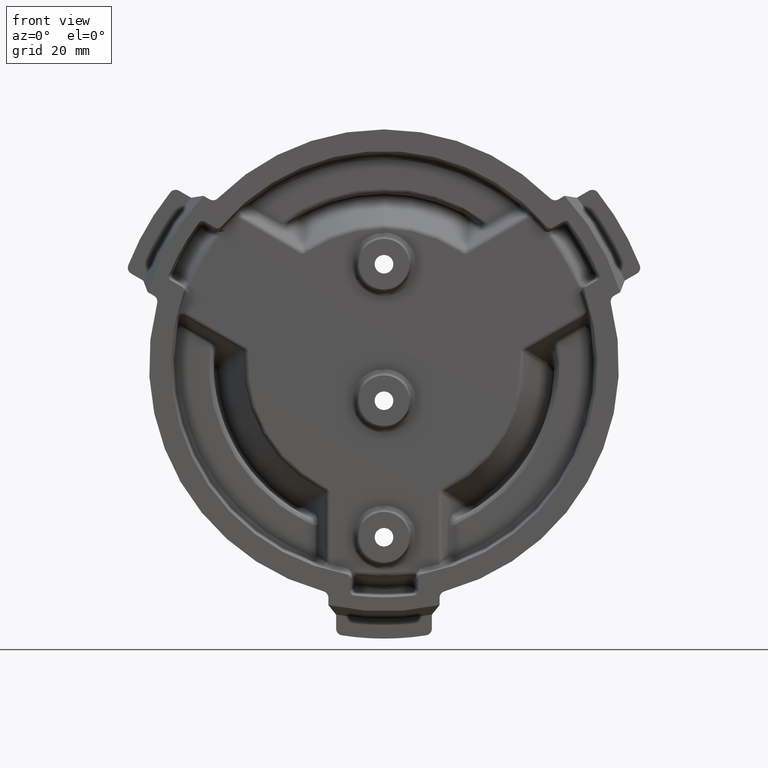
[diagram: clean part render]
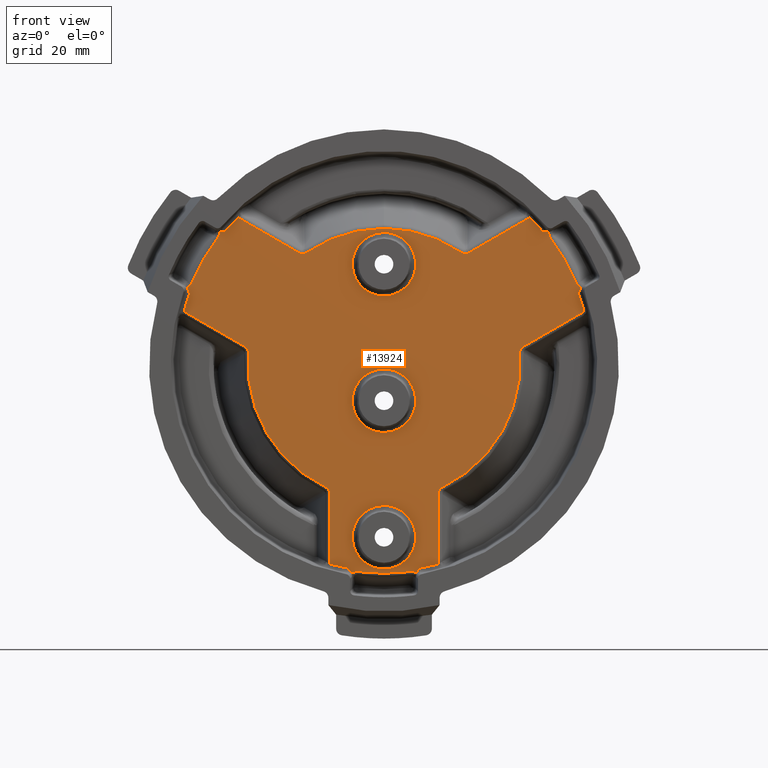
[diagram: same view with one face highlighted and labeled with its STEP entity id]
A machine part, front view. The second image highlights one B-rep face of the part: STEP entity #13924.
In plain terms, the highlighted planar face has unit normal (0, 1, 0).
Its self-contained STEP definition (entity closure, byte-faithful):
#312 = FACE_BOUND ( 'NONE', #38866, .T. ) ;
#315 = FACE_OUTER_BOUND ( 'NONE', #38862, .T. ) ;
#429 = FACE_BOUND ( 'NONE', #38391, .T. ) ;
#460 = FACE_BOUND ( 'NONE', #37845, .T. ) ;
#542 =( BOUNDED_CURVE ( )  B_SPLINE_CURVE ( 3, ( #19095, #19102, #19103, #19104 ),
 .UNSPECIFIED., .F., .T. ) 
 B_SPLINE_CURVE_WITH_KNOTS ( ( 4, 4 ),
 ( 0.0000000000000000000, 1.000000000000000000 ),
 .UNSPECIFIED. ) 
 CURVE ( )  GEOMETRIC_REPRESENTATION_ITEM ( )  RATIONAL_B_SPLINE_CURVE ( ( 0.9686155102881735000, 0.9635214768748939800, 0.9635214768748939800, 0.9686155102881735000 ) ) 
 REPRESENTATION_ITEM ( '' )  );
#549 =( BOUNDED_CURVE ( )  B_SPLINE_CURVE ( 3, ( #28554, #28590, #28591, #28592 ),
 .UNSPECIFIED., .F., .T. ) 
 B_SPLINE_CURVE_WITH_KNOTS ( ( 4, 4 ),
 ( 0.0000000000000000000, 1.000000000000000000 ),
 .UNSPECIFIED. ) 
 CURVE ( )  GEOMETRIC_REPRESENTATION_ITEM ( )  RATIONAL_B_SPLINE_CURVE ( ( 0.9686155105817824100, 0.9398310757472785300, 0.9398310757472785300, 0.9686155105817824100 ) ) 
 REPRESENTATION_ITEM ( '' )  );
#584 =( BOUNDED_CURVE ( )  B_SPLINE_CURVE ( 3, ( #20447, #20471, #20472, #20473 ),
 .UNSPECIFIED., .F., .T. ) 
 B_SPLINE_CURVE_WITH_KNOTS ( ( 4, 4 ),
 ( 0.0000000000000000000, 1.000000000000000000 ),
 .UNSPECIFIED. ) 
 CURVE ( )  GEOMETRIC_REPRESENTATION_ITEM ( )  RATIONAL_B_SPLINE_CURVE ( ( 0.9686155102881689500, 0.9635214768748912000, 0.9635214768748912000, 0.9686155102881689500 ) ) 
 REPRESENTATION_ITEM ( '' )  );
#587 =( BOUNDED_CURVE ( )  B_SPLINE_CURVE ( 3, ( #20983, #21007, #21008, #21009 ),
 .UNSPECIFIED., .F., .T. ) 
 B_SPLINE_CURVE_WITH_KNOTS ( ( 4, 4 ),
 ( 0.0000000000000000000, 1.000000000000000000 ),
 .UNSPECIFIED. ) 
 CURVE ( )  GEOMETRIC_REPRESENTATION_ITEM ( )  RATIONAL_B_SPLINE_CURVE ( ( 0.9686155102881759400, 0.9635214768748963100, 0.9635214768748963100, 0.9686155102881759400 ) ) 
 REPRESENTATION_ITEM ( '' )  );
#640 =( BOUNDED_CURVE ( )  B_SPLINE_CURVE ( 3, ( #40175, #40181, #40182, #40183 ),
 .UNSPECIFIED., .F., .T. ) 
 B_SPLINE_CURVE_WITH_KNOTS ( ( 4, 4 ),
 ( 0.0000000000000000000, 1.000000000000000000 ),
 .UNSPECIFIED. ) 
 CURVE ( )  GEOMETRIC_REPRESENTATION_ITEM ( )  RATIONAL_B_SPLINE_CURVE ( ( 0.9686155102881780500, 0.9398310754623999700, 0.9398310754623999700, 0.9686155102881780500 ) ) 
 REPRESENTATION_ITEM ( '' )  );
#670 =( BOUNDED_CURVE ( )  B_SPLINE_CURVE ( 3, ( #40240, #40261, #40263, #40265 ),
 .UNSPECIFIED., .F., .T. ) 
 B_SPLINE_CURVE_WITH_KNOTS ( ( 4, 4 ),
 ( 0.0000000000000000000, 1.000000000000000000 ),
 .UNSPECIFIED. ) 
 CURVE ( )  GEOMETRIC_REPRESENTATION_ITEM ( )  RATIONAL_B_SPLINE_CURVE ( ( 0.9686155102881771600, 0.8560439399533692500, 0.8560439399533692500, 0.9686155102881771600 ) ) 
 REPRESENTATION_ITEM ( '' )  );
#682 = ORIENTED_EDGE ( 'NONE', *, *, #30143, .F. ) ;
#686 = ORIENTED_EDGE ( 'NONE', *, *, #30138, .F. ) ;
#687 = ORIENTED_EDGE ( 'NONE', *, *, #24816, .T. ) ;
#704 = ORIENTED_EDGE ( 'NONE', *, *, #16843, .F. ) ;
#707 = ORIENTED_EDGE ( 'NONE', *, *, #16845, .F. ) ;
#708 = ORIENTED_EDGE ( 'NONE', *, *, #16833, .F. ) ;
#709 = ORIENTED_EDGE ( 'NONE', *, *, #16855, .F. ) ;
#711 = ORIENTED_EDGE ( 'NONE', *, *, #24790, .F. ) ;
#712 = ORIENTED_EDGE ( 'NONE', *, *, #16836, .F. ) ;
#713 = ORIENTED_EDGE ( 'NONE', *, *, #16821, .F. ) ;
#714 = ORIENTED_EDGE ( 'NONE', *, *, #24782, .F. ) ;
#715 = ORIENTED_EDGE ( 'NONE', *, *, #24801, .T. ) ;
#716 = ORIENTED_EDGE ( 'NONE', *, *, #24805, .F. ) ;
#717 = ORIENTED_EDGE ( 'NONE', *, *, #16807, .F. ) ;
#718 = ORIENTED_EDGE ( 'NONE', *, *, #16814, .F. ) ;
#719 = ORIENTED_EDGE ( 'NONE', *, *, #16817, .F. ) ;
#720 = ORIENTED_EDGE ( 'NONE', *, *, #24808, .F. ) ;
#721 = ORIENTED_EDGE ( 'NONE', *, *, #24806, .T. ) ;
#722 = ORIENTED_EDGE ( 'NONE', *, *, #24775, .F. ) ;
#723 = ORIENTED_EDGE ( 'NONE', *, *, #24809, .F. ) ;
#724 = ORIENTED_EDGE ( 'NONE', *, *, #24798, .F. ) ;
#725 = ORIENTED_EDGE ( 'NONE', *, *, #24804, .F. ) ;
#727 = ORIENTED_EDGE ( 'NONE', *, *, #24768, .F. ) ;
#738 = ORIENTED_EDGE ( 'NONE', *, *, #24815, .T. ) ;
#739 = ORIENTED_EDGE ( 'NONE', *, *, #24812, .F. ) ;
#740 = ORIENTED_EDGE ( 'NONE', *, *, #24814, .F. ) ;
#742 = ORIENTED_EDGE ( 'NONE', *, *, #24737, .F. ) ;
#758 = ORIENTED_EDGE ( 'NONE', *, *, #16906, .F. ) ;
#761 = ORIENTED_EDGE ( 'NONE', *, *, #24810, .T. ) ;
#762 = ORIENTED_EDGE ( 'NONE', *, *, #24807, .T. ) ;
#763 = ORIENTED_EDGE ( 'NONE', *, *, #24813, .T. ) ;
#764 = ORIENTED_EDGE ( 'NONE', *, *, #16850, .F. ) ;
#765 = ORIENTED_EDGE ( 'NONE', *, *, #30147, .F. ) ;
#773 = ORIENTED_EDGE ( 'NONE', *, *, #24819, .F. ) ;
#777 = ORIENTED_EDGE ( 'NONE', *, *, #24811, .F. ) ;
#811 = ORIENTED_EDGE ( 'NONE', *, *, #30141, .F. ) ;
#815 = ORIENTED_EDGE ( 'NONE', *, *, #24818, .F. ) ;
#996 = ORIENTED_EDGE ( 'NONE', *, *, #24817, .F. ) ;
#1044 = ORIENTED_EDGE ( 'NONE', *, *, #24752, .F. ) ;
#1105 = ORIENTED_EDGE ( 'NONE', *, *, #30137, .F. ) ;
#1148 = ORIENTED_EDGE ( 'NONE', *, *, #24822, .F. ) ;
#1149 = ORIENTED_EDGE ( 'NONE', *, *, #24820, .T. ) ;
#1150 = ORIENTED_EDGE ( 'NONE', *, *, #24744, .F. ) ;
#2208 = CARTESIAN_POINT ( 'NONE',  ( -0.8086878679304664300, 0.2050000000770761100, -1.683589906761242800 ) ) ;
#5838 = VERTEX_POINT ( 'NONE', #2208 ) ;
#5953 = VERTEX_POINT ( 'NONE', #24999 ) ;
#5963 = VERTEX_POINT ( 'NONE', #25016 ) ;
#5985 = VERTEX_POINT ( 'NONE', #25045 ) ;
#6013 = VERTEX_POINT ( 'NONE', #25073 ) ;
#7666 = CARTESIAN_POINT ( 'NONE',  ( -0.7444506742398517800, 0.2050000000000000400, -1.785708711951044400 ) ) ;
#7686 = CARTESIAN_POINT ( 'NONE',  ( -1.174243770223734300, 0.2049999999197994200, 1.537567551531012300 ) ) ;
#7718 = CARTESIAN_POINT ( 'NONE',  ( 0.0000000000000000000, 0.2049999997944353100, -0.9357706992531946700 ) ) ;
#7730 = CARTESIAN_POINT ( 'NONE',  ( 1.862375563629415900, 0.2050000000462457200, 0.1414507128146471100 ) ) ;
#7795 = CARTESIAN_POINT ( 'NONE',  ( 0.0000000000000000000, 0.2049999997944353100, 0.9392293017680027900 ) ) ;
#7862 = CARTESIAN_POINT ( 'NONE',  ( 0.0000000000000000000, 0.2050000001387370400, 1.867739554692094700 ) ) ;
#7984 = CARTESIAN_POINT ( 'NONE',  ( -1.862375563350380200, 0.2050000001103479400, 0.1414507164884904700 ) ) ;
#7997 = CARTESIAN_POINT ( 'NONE',  ( 0.7444506741289425000, 0.2050000000000000700, -1.785708711475522300 ) ) ;
#8041 = CARTESIAN_POINT ( 'NONE',  ( 0.0000000000000000000, 0.2049999997944352600, -1.939229302497149000 ) ) ;
#8262 = CARTESIAN_POINT ( 'NONE',  ( 1.174243770276882600, 0.2050000000260964500, 1.537567551438956200 ) ) ;
#8276 = CARTESIAN_POINT ( 'NONE',  ( 1.918694444290166300, 0.2049999999322275100, 0.2481411601040451600 ) ) ;
#12505 = CARTESIAN_POINT ( 'NONE',  ( -0.7444506742398517800, 0.2050000000000000400, -1.785708711951044400 ) ) ;
#12530 = CARTESIAN_POINT ( 'NONE',  ( -0.7444506740000005300, 0.2049999999999999900, -1.783060852999999600 ) ) ;
#12532 = CARTESIAN_POINT ( 'NONE',  ( -0.7445372790000003300, 0.2049999999999999900, -1.780409347999999800 ) ) ;
#12534 = CARTESIAN_POINT ( 'NONE',  ( -0.7448901200000004300, 0.2049999999999999900, -1.775098760999999700 ) ) ;
#12535 = CARTESIAN_POINT ( 'NONE',  ( -0.7451578130000005000, 0.2049999999999999900, -1.772430064000000100 ) ) ;
#12536 = CARTESIAN_POINT ( 'NONE',  ( -0.7462320910000003200, 0.2049999999999999900, -1.764491678000000000 ) ) ;
#12538 = CARTESIAN_POINT ( 'NONE',  ( -0.7473040180000006800, 0.2049999999999999900, -1.759300675000000200 ) ) ;
#12539 = CARTESIAN_POINT ( 'NONE',  ( -0.7501608220000005600, 0.2049999999999999900, -1.749121592000000100 ) ) ;
#12541 = CARTESIAN_POINT ( 'NONE',  ( -0.7519455470000007100, 0.2049999999999999900, -1.744133470000000200 ) ) ;
#12543 = CARTESIAN_POINT ( 'NONE',  ( -0.7551847070000006200, 0.2050000000000000700, -1.736811267000000200 ) ) ;
#12544 = CARTESIAN_POINT ( 'NONE',  ( -0.7563603430000004300, 0.2050000000000000700, -1.734395723000000400 ) ) ;
#12545 = CARTESIAN_POINT ( 'NONE',  ( -0.7588622040000006000, 0.2050000000000000700, -1.729698303000000200 ) ) ;
#12546 = CARTESIAN_POINT ( 'NONE',  ( -0.7601926330000007300, 0.2050000000000000700, -1.727406127000000500 ) ) ;
#12547 = CARTESIAN_POINT ( 'NONE',  ( -0.7644180770000005300, 0.2050000000000000700, -1.720696117000000100 ) ) ;
#12549 = CARTESIAN_POINT ( 'NONE',  ( -0.7675463260000006100, 0.2050000000000000700, -1.716444145000000800 ) ) ;
#12550 = CARTESIAN_POINT ( 'NONE',  ( -0.7727054890000005800, 0.2049999999999999900, -1.710398137000001000 ) ) ;
#12551 = CARTESIAN_POINT ( 'NONE',  ( -0.7745032390000004000, 0.2049999999999999900, -1.708438290000000800 ) ) ;
#12552 = CARTESIAN_POINT ( 'NONE',  ( -0.7782576340000004800, 0.2049999999999999900, -1.704631593000000900 ) ) ;
#12554 = CARTESIAN_POINT ( 'NONE',  ( -0.7802066980000005300, 0.2049999999999999900, -1.702793463000000800 ) ) ;
#12555 = CARTESIAN_POINT ( 'NONE',  ( -0.7861975450000001600, 0.2049999999999999900, -1.697530995000000600 ) ) ;
#12557 = CARTESIAN_POINT ( 'NONE',  ( -0.7904076540000002400, 0.2049999999999999900, -1.694331495000000600 ) ) ;
#12559 = CARTESIAN_POINT ( 'NONE',  ( -0.7992393190000002300, 0.2049999999999999900, -1.688520157000000800 ) ) ;
#12560 = CARTESIAN_POINT ( 'NONE',  ( -0.8038610360000003600, 0.2049999999999999900, -1.685908405000000200 ) ) ;
#12561 = CARTESIAN_POINT ( 'NONE',  ( -0.8086878679304664300, 0.2050000000770761100, -1.683589906761242800 ) ) ;
#12562 = CARTESIAN_POINT ( 'NONE',  ( -1.862375563350380200, 0.2050000001103479400, 0.1414507164884904700 ) ) ;
#12568 = CARTESIAN_POINT ( 'NONE',  ( -0.8086878679304664300, 0.2050000000770761100, -1.683589906761242800 ) ) ;
#12576 = CARTESIAN_POINT ( 'NONE',  ( -1.525154565127849500, 0.2050000002312283600, -1.339445573085666900 ) ) ;
#12578 = CARTESIAN_POINT ( 'NONE',  ( -1.922571176383282200, 0.2050000002312283600, -0.6510998118542543600 ) ) ;
#12579 = CARTESIAN_POINT ( 'NONE',  ( -1.862375563350380500, 0.2050000001103479400, 0.1414507164884904700 ) ) ;
#12587 = CARTESIAN_POINT ( 'NONE',  ( -1.862175029000000500, 0.2050000000000000400, 0.1440909920000000600 ) ) ;
#12589 = CARTESIAN_POINT ( 'NONE',  ( -1.862060554000000600, 0.2050000000000000400, 0.1467414620000000700 ) ) ;
#12591 = CARTESIAN_POINT ( 'NONE',  ( -1.862010128000000500, 0.2050000000000000400, 0.1520635570000000400 ) ) ;
#12593 = CARTESIAN_POINT ( 'NONE',  ( -1.862074903000000100, 0.2050000000000000400, 0.1547448840000000800 ) ) ;
#12595 = CARTESIAN_POINT ( 'NONE',  ( -1.862544769000000300, 0.2050000000000000400, 0.1627417930000000500 ) ) ;
#12596 = CARTESIAN_POINT ( 'NONE',  ( -1.863220407000000000, 0.2050000000000000400, 0.1679990560000000900 ) ) ;
#12597 = CARTESIAN_POINT ( 'NONE',  ( -1.865298048000000100, 0.2050000000000000400, 0.1783652410000000400 ) ) ;
#12599 = CARTESIAN_POINT ( 'NONE',  ( -1.866699898000000000, 0.2050000000000000400, 0.1834741940000000300 ) ) ;
#12600 = CARTESIAN_POINT ( 'NONE',  ( -1.869375320000000500, 0.2050000000000000400, 0.1910206750000000300 ) ) ;
#12602 = CARTESIAN_POINT ( 'NONE',  ( -1.870364680000000000, 0.2050000000000000400, 0.1935182980000000600 ) ) ;
#12604 = CARTESIAN_POINT ( 'NONE',  ( -1.872503686000000200, 0.2050000000000000400, 0.1983916510000000600 ) ) ;
#12606 = CARTESIAN_POINT ( 'NONE',  ( -1.873656744000000500, 0.2050000000000000400, 0.2007779740000000300 ) ) ;
#12608 = CARTESIAN_POINT ( 'NONE',  ( -1.877362014000000200, 0.2050000000000000400, 0.2077886390000000500 ) ) ;
#12609 = CARTESIAN_POINT ( 'NONE',  ( -1.880159351000000500, 0.2050000000000000400, 0.2122652610000000700 ) ) ;
#12610 = CARTESIAN_POINT ( 'NONE',  ( -1.884845895000000200, 0.2050000000000000400, 0.2186845810000000400 ) ) ;
#12611 = CARTESIAN_POINT ( 'NONE',  ( -1.886490076000000300, 0.2050000000000000400, 0.2207749390000000600 ) ) ;
#12612 = CARTESIAN_POINT ( 'NONE',  ( -1.889945414000000500, 0.2050000000000000400, 0.2248550290000000400 ) ) ;
#12613 = CARTESIAN_POINT ( 'NONE',  ( -1.891749662000000100, 0.2050000000000000400, 0.2268354810000000900 ) ) ;
#12615 = CARTESIAN_POINT ( 'NONE',  ( -1.897324720000000100, 0.2050000000000000400, 0.2325365650000000600 ) ) ;
#12616 = CARTESIAN_POINT ( 'NONE',  ( -1.901280375000000000, 0.2050000000000000400, 0.2360457810000000700 ) ) ;
#12617 = CARTESIAN_POINT ( 'NONE',  ( -1.909646457999999900, 0.2050000000000000400, 0.2425094150000000600 ) ) ;
#12619 = CARTESIAN_POINT ( 'NONE',  ( -1.914057052000000200, 0.2050000000000000400, 0.2454637600000000600 ) ) ;
#12621 = CARTESIAN_POINT ( 'NONE',  ( -1.918694444573720600, 0.2049999998598167300, 0.2481411600221350700 ) ) ;
#12622 = CARTESIAN_POINT ( 'NONE',  ( 0.0000000000000000000, 0.2049999997944353100, -0.06422930147595130900 ) ) ;
#12634 = CARTESIAN_POINT ( 'NONE',  ( -0.8715413969158148900, 0.2049999996573921000, -0.06422930153734680800 ) ) ;
#12636 = CARTESIAN_POINT ( 'NONE',  ( -0.8715413969158148900, 0.2049999996573921000, -0.9357706984626530400 ) ) ;
#12638 = CARTESIAN_POINT ( 'NONE',  ( 0.0000000000000000000, 0.2049999997944353100, -0.9357706992531946700 ) ) ;
#12652 = CARTESIAN_POINT ( 'NONE',  ( 0.0000000000000000000, 0.2049999997944353100, -0.9357706992531946700 ) ) ;
#12673 = CARTESIAN_POINT ( 'NONE',  ( 0.0000000000000000000, 0.2049999997944352600, -1.939229302497149000 ) ) ;
#12679 = CARTESIAN_POINT ( 'NONE',  ( -0.8715413969158145600, 0.2049999996573921000, -1.939229301537346100 ) ) ;
#12681 = CARTESIAN_POINT ( 'NONE',  ( -0.8715413969158145600, 0.2049999996573921000, -2.810770698462653700 ) ) ;
#12682 = CARTESIAN_POINT ( 'NONE',  ( 0.0000000000000000000, 0.2049999997944353100, -2.810770698296271200 ) ) ;
#12687 = CARTESIAN_POINT ( 'NONE',  ( 0.8715413969158148900, 0.2049999996573921000, -0.9357706984626533700 ) ) ;
#12688 = CARTESIAN_POINT ( 'NONE',  ( 0.8715413969158148900, 0.2049999996573921000, -0.06422930153734687800 ) ) ;
#12690 = CARTESIAN_POINT ( 'NONE',  ( 0.0000000000000000000, 0.2049999997944353100, -0.06422930147595130900 ) ) ;
#12693 = CARTESIAN_POINT ( 'NONE',  ( 0.0000000000000000000, 0.2049999997944353100, 1.810770697567125600 ) ) ;
#12700 = CARTESIAN_POINT ( 'NONE',  ( 0.0000000000000000000, 0.2049999997944353100, -2.810770698296271200 ) ) ;
#12826 = CARTESIAN_POINT ( 'NONE',  ( -0.8715413969158147800, 0.2049999996573920700, 1.810770698462653000 ) ) ;
#12827 = CARTESIAN_POINT ( 'NONE',  ( -0.8715413969158147800, 0.2049999996573920700, 0.9392293015373470700 ) ) ;
#12829 = CARTESIAN_POINT ( 'NONE',  ( 0.0000000000000000000, 0.2049999997944353100, 0.9392293017680027900 ) ) ;
#12831 = CARTESIAN_POINT ( 'NONE',  ( 1.918694444290166300, 0.2049999999322275100, 0.2481411601040451600 ) ) ;
#12835 = VECTOR ( 'NONE', #19298, 39.37007874015748100 ) ;
#12952 = VECTOR ( 'NONE', #20157, 39.37007874015748900 ) ;
#12984 = LINE ( 'NONE', #19297, #12835 ) ;
#12986 = LINE ( 'NONE', #20156, #12952 ) ;
#13251 = CARTESIAN_POINT ( 'NONE',  ( 0.8715413969158148900, 0.2049999996573921600, -2.810770698462653700 ) ) ;
#13252 = CARTESIAN_POINT ( 'NONE',  ( 0.8715413969158148900, 0.2049999996573921600, -1.939229301537346700 ) ) ;
#13253 = CARTESIAN_POINT ( 'NONE',  ( 0.0000000000000000000, 0.2049999997944352600, -1.939229302497149000 ) ) ;
#13258 = CARTESIAN_POINT ( 'NONE',  ( 0.0000000000000000000, 0.2049999997944353100, 0.9392293017680029000 ) ) ;
#13259 = CARTESIAN_POINT ( 'NONE',  ( 1.916401331999999700, 0.2050000000000000700, 0.2468172309999999700 ) ) ;
#13260 = CARTESIAN_POINT ( 'NONE',  ( 1.914148363999999900, 0.2050000000000000700, 0.2454164769999999700 ) ) ;
#13261 = CARTESIAN_POINT ( 'NONE',  ( 1.909725680999999400, 0.2050000000000000700, 0.2424556139999999600 ) ) ;
#13262 = CARTESIAN_POINT ( 'NONE',  ( 1.907548367999999800, 0.2050000000000000700, 0.2408894359999999600 ) ) ;
#13263 = CARTESIAN_POINT ( 'NONE',  ( 1.901210662999999900, 0.2050000000000000700, 0.2359898909999999500 ) ) ;
#13264 = CARTESIAN_POINT ( 'NONE',  ( 1.897251086000000000, 0.2050000000000000700, 0.2324660729999999700 ) ) ;
#13265 = CARTESIAN_POINT ( 'NONE',  ( 1.889864143999999900, 0.2050000000000000700, 0.2249024680000000500 ) ) ;
#13266 = CARTESIAN_POINT ( 'NONE',  ( 1.886436666000000000, 0.2050000000000000700, 0.2208627890000000300 ) ) ;
#13267 = CARTESIAN_POINT ( 'NONE',  ( 1.881715033000000100, 0.2050000000000000700, 0.2143964930000000500 ) ) ;
#13268 = CARTESIAN_POINT ( 'NONE',  ( 1.880210927000000300, 0.2050000000000000700, 0.2121705899999999600 ) ) ;
#13269 = CARTESIAN_POINT ( 'NONE',  ( 1.877393772999999900, 0.2050000000000000700, 0.2076552049999999800 ) ) ;
#13270 = CARTESIAN_POINT ( 'NONE',  ( 1.876073904999999900, 0.2050000000000000700, 0.2053569309999999900 ) ) ;
#13271 = CARTESIAN_POINT ( 'NONE',  ( 1.872375587999999900, 0.2050000000000000700, 0.1983425850000000200 ) ) ;
#13272 = CARTESIAN_POINT ( 'NONE',  ( 1.870257397000000000, 0.2050000000000000700, 0.1935074550000000500 ) ) ;
#13273 = CARTESIAN_POINT ( 'NONE',  ( 1.867600981999999700, 0.2050000000000000700, 0.1860164850000000900 ) ) ;
#13274 = CARTESIAN_POINT ( 'NONE',  ( 1.866802579000000000, 0.2050000000000000700, 0.1834796650000000400 ) ) ;
#13275 = CARTESIAN_POINT ( 'NONE',  ( 1.865383081000000100, 0.2050000000000000700, 0.1783249140000000300 ) ) ;
#13276 = CARTESIAN_POINT ( 'NONE',  ( 1.864765744999999900, 0.2050000000000000700, 0.1757179110000000600 ) ) ;
#13277 = CARTESIAN_POINT ( 'NONE',  ( 1.863203737999999900, 0.2050000000000000700, 0.1678984510000000000 ) ) ;
#13279 = CARTESIAN_POINT ( 'NONE',  ( 1.862537944000000300, 0.2050000000000000700, 0.1626526400000000400 ) ) ;
#13280 = CARTESIAN_POINT ( 'NONE',  ( 1.861921009999999400, 0.2050000000000000700, 0.1520985250000000400 ) ) ;
#13282 = CARTESIAN_POINT ( 'NONE',  ( 1.861970024999999800, 0.2050000000000000700, 0.1467901250000000500 ) ) ;
#13284 = CARTESIAN_POINT ( 'NONE',  ( 1.862375563629415900, 0.2050000000462457200, 0.1414507128146471100 ) ) ;
#13297 = CARTESIAN_POINT ( 'NONE',  ( 0.8715413969158148900, 0.2049999996573920700, 0.9392293015373470700 ) ) ;
#13298 = CARTESIAN_POINT ( 'NONE',  ( 0.8715413969158148900, 0.2049999996573920700, 1.810770698462653000 ) ) ;
#13300 = CARTESIAN_POINT ( 'NONE',  ( 0.0000000000000000000, 0.2049999997944353100, 1.810770697567125600 ) ) ;
#13721 = CARTESIAN_POINT ( 'NONE',  ( 0.8086878690411228900, 0.2050000000462456900, -1.683589906218572200 ) ) ;
#13733 = CARTESIAN_POINT ( 'NONE',  ( 0.8063010550000001600, 0.2050000000000000400, -1.684736378000000200 ) ) ;
#13734 = CARTESIAN_POINT ( 'NONE',  ( 0.8039484430000001200, 0.2050000000000000400, -1.685962474000000300 ) ) ;
#13736 = CARTESIAN_POINT ( 'NONE',  ( 0.7993141609999998600, 0.2050000000000000400, -1.688579852000000400 ) ) ;
#13737 = CARTESIAN_POINT ( 'NONE',  ( 0.7970244510000000800, 0.2050000000000000400, -1.689976611000000100 ) ) ;
#13739 = CARTESIAN_POINT ( 'NONE',  ( 0.7903338580000000000, 0.2050000000000000400, -1.694381982000000300 ) ) ;
#13741 = CARTESIAN_POINT ( 'NONE',  ( 0.7861187530000001100, 0.2050000000000000400, -1.697595733000000200 ) ) ;
#13742 = CARTESIAN_POINT ( 'NONE',  ( 0.7781801939999999400, 0.2050000000000000400, -1.704578116000000400 ) ) ;
#13744 = CARTESIAN_POINT ( 'NONE',  ( 0.7744566360000001400, 0.2050000000000000400, -1.708346630000000300 ) ) ;
#13746 = CARTESIAN_POINT ( 'NONE',  ( 0.7692589030000002200, 0.2050000000000000400, -1.714436854000000300 ) ) ;
#13747 = CARTESIAN_POINT ( 'NONE',  ( 0.7675905780000001900, 0.2050000000000000400, -1.716542476000000500 ) ) ;
#13749 = CARTESIAN_POINT ( 'NONE',  ( 0.7644396340000002600, 0.2050000000000000400, -1.720831586000000300 ) ) ;
#13750 = CARTESIAN_POINT ( 'NONE',  ( 0.7629495460000003100, 0.2050000000000000400, -1.723023325000000200 ) ) ;
#13752 = CARTESIAN_POINT ( 'NONE',  ( 0.7587307670000001900, 0.2050000000000000400, -1.729737516000000600 ) ) ;
#13754 = CARTESIAN_POINT ( 'NONE',  ( 0.7562525670000001000, 0.2050000000000000400, -1.734398392000000100 ) ) ;
#13755 = CARTESIAN_POINT ( 'NONE',  ( 0.7530365460000001400, 0.2050000000000000400, -1.741666718000000100 ) ) ;
#13757 = CARTESIAN_POINT ( 'NONE',  ( 0.7520483320000003200, 0.2050000000000000400, -1.744135799000000400 ) ) ;
#13759 = CARTESIAN_POINT ( 'NONE',  ( 0.7502425400000001200, 0.2050000000000000400, -1.749168255000000100 ) ) ;
#13760 = CARTESIAN_POINT ( 'NONE',  ( 0.7494295420000002300, 0.2050000000000000400, -1.751721006000000100 ) ) ;
#13762 = CARTESIAN_POINT ( 'NONE',  ( 0.7472797870000000800, 0.2050000000000000400, -1.759399690000000000 ) ) ;
#13763 = CARTESIAN_POINT ( 'NONE',  ( 0.7462185449999999600, 0.2050000000000000400, -1.764579995000000300 ) ) ;
#13765 = CARTESIAN_POINT ( 'NONE',  ( 0.7448039150000002100, 0.2050000000000000400, -1.775057052000000400 ) ) ;
#13767 = CARTESIAN_POINT ( 'NONE',  ( 0.7444506740000002000, 0.2050000000000000400, -1.780353911000000400 ) ) ;
#13768 = CARTESIAN_POINT ( 'NONE',  ( 0.7444506741289425000, 0.2050000000000000700, -1.785708711475522300 ) ) ;
#13924 = ADVANCED_FACE ( 'NONE', ( #429, #460, #312, #315 ), #31486, .F. ) ;
#16807 = EDGE_CURVE ( 'NONE', #41586, #5838, #35415, .T. ) ;
#16814 = EDGE_CURVE ( 'NONE', #5838, #42126, #36823, .T. ) ;
#16817 = EDGE_CURVE ( 'NONE', #42126, #5985, #35421, .T. ) ;
#16821 = EDGE_CURVE ( 'NONE', #37124, #41678, #36784, .T. ) ;
#16833 = EDGE_CURVE ( 'NONE', #42229, #5963, #36839, .T. ) ;
#16836 = EDGE_CURVE ( 'NONE', #41678, #37124, #36770, .T. ) ;
#16843 = EDGE_CURVE ( 'NONE', #37346, #41826, #36883, .T. ) ;
#16845 = EDGE_CURVE ( 'NONE', #5963, #42229, #36765, .T. ) ;
#16850 = EDGE_CURVE ( 'NONE', #42913, #41692, #35414, .T. ) ;
#16855 = EDGE_CURVE ( 'NONE', #41826, #37346, #36752, .T. ) ;
#16906 = EDGE_CURVE ( 'NONE', #5953, #42154, #17782, .T. ) ;
#17782 = B_SPLINE_CURVE_WITH_KNOTS ( 'NONE', 3,
 ( #13721, #13733, #13734, #13736, #13737, #13739, #13741, #13742, #13744, #13746, #13747, #13749, #13750, #13752, #13754, #13755, #13757, #13759, #13760, #13762, #13763, #13765, #13767, #13768 ),
 .UNSPECIFIED., .F., .F.,
 ( 4, 2, 2, 2, 2, 2, 2, 2, 2, 2, 2, 4 ),
 ( 0.0000000000000000000, 0.06249999999999895200, 0.1249999999999997900, 0.2499999999999993300, 0.3749999999999991100, 0.4374999999999975600, 0.4999999999999983900, 0.6249999999999978900, 0.6874999999999993300, 0.7499999999999974500, 0.8749999999999972200, 1.000000000000000000 ),
 .UNSPECIFIED. ) ;
#19095 = CARTESIAN_POINT ( 'NONE',  ( 2.285557194247970000, 0.2050000000462457200, 1.734928091302588000 ) ) ;
#19102 = CARTESIAN_POINT ( 'NONE',  ( 2.431317023936852500, 0.2050000002312283900, 1.542907206618515000 ) ) ;
#19103 = CARTESIAN_POINT ( 'NONE',  ( 2.551855348963817600, 0.2050000002312283900, 1.334128704144774700 ) ) ;
#19104 = CARTESIAN_POINT ( 'NONE',  ( 2.645270397964144800, 0.2050000000462456900, 1.111886545893684400 ) ) ;
#19297 = CARTESIAN_POINT ( 'NONE',  ( -2.008709784610487800, 0.2049999995114046800, 2.019346729411447800 ) ) ;
#19298 = DIRECTION ( 'NONE',  ( 0.8660254037854981900, -1.892679789557822800E-015, -0.4999999999981647500 ) ) ;
#19411 = B_SPLINE_CURVE_WITH_KNOTS ( 'NONE', 3,
 ( #28589, #28593, #28594, #28595, #28596, #28597, #28598, #28599, #28600, #28601, #28602, #28603, #28604, #28605, #28606, #28607, #28608, #28609, #28610, #28611, #28612, #28613, #28614, #28615 ),
 .UNSPECIFIED., .F., .F.,
 ( 4, 2, 2, 2, 2, 2, 2, 2, 2, 2, 2, 4 ),
 ( 0.0000000000000000000, 0.06249999999999911900, 0.1249999999999985000, 0.2500000000000008300, 0.3749999999999987800, 0.4375000000000008900, 0.4999999999999997200, 0.6249999999999982200, 0.6874999999999982200, 0.7500000000000005600, 0.8749999999999993300, 1.000000000000000000 ),
 .UNSPECIFIED. ) ;
#19412 = B_SPLINE_CURVE_WITH_KNOTS ( 'NONE', 3,
 ( #40184, #40189, #40190, #40191, #40192, #40193, #40194, #40196, #40198, #40200, #40202, #40204, #40205, #40207, #40209, #40210, #40211, #40212, #40214, #40216, #40218, #40220, #40222, #40224 ),
 .UNSPECIFIED., .F., .F.,
 ( 4, 2, 2, 2, 2, 2, 2, 2, 2, 2, 2, 4 ),
 ( 0.0000000000000000000, 0.06250000000000008300, 0.1250000000000012500, 0.2499999999999987200, 0.3750000000000002200, 0.4375000000000013900, 0.4999999999999985000, 0.6250000000000003300, 0.6875000000000004400, 0.7500000000000013300, 0.8749999999999988900, 1.000000000000000000 ),
 .UNSPECIFIED. ) ;
#20156 = CARTESIAN_POINT ( 'NONE',  ( 1.174243769778275900, 0.2049999999365952100, 1.537567551120828900 ) ) ;
#20157 = DIRECTION ( 'NONE',  ( 0.8660254037854940900, -0.0000000000000000000, 0.4999999999981718500 ) ) ;
#20447 = CARTESIAN_POINT ( 'NONE',  ( -2.645270397964144800, 0.2050000000462457200, 1.111886545893684400 ) ) ;
#20471 = CARTESIAN_POINT ( 'NONE',  ( -2.551855348963817600, 0.2050000002312283900, 1.334128704144774700 ) ) ;
#20472 = CARTESIAN_POINT ( 'NONE',  ( -2.431317023936852900, 0.2050000002312283900, 1.542907206618515700 ) ) ;
#20473 = CARTESIAN_POINT ( 'NONE',  ( -2.285557194247943300, 0.2050000000462457200, 1.734928091302622400 ) ) ;
#20621 = CARTESIAN_POINT ( 'NONE',  ( -0.7444506744676817600, 0.2050000000000000400, -0.4268575074999996200 ) ) ;
#20625 = DIRECTION ( 'NONE',  ( 0.0000000000000000000, 0.0000000000000000000, 1.000000000000000000 ) ) ;
#20751 = CARTESIAN_POINT ( 'NONE',  ( -1.918694444503596100, 0.2049999996070569200, 0.2481411593909551600 ) ) ;
#20813 = DIRECTION ( 'NONE',  ( -0.8660254037854947500, 0.0000000000000000000, 0.4999999999981707400 ) ) ;
#20858 = CARTESIAN_POINT ( 'NONE',  ( -2.707690471694177000, 0.2049999978556552000, 1.050519153916327900 ) ) ;
#20965 = CARTESIAN_POINT ( 'NONE',  ( -2.700773695907809500, 0.2050000000196396900, 1.053331503960462500 ) ) ;
#20966 = CARTESIAN_POINT ( 'NONE',  ( -2.694025081432523700, 0.2050000000159795900, 1.056845862443228000 ) ) ;
#20967 = CARTESIAN_POINT ( 'NONE',  ( -2.681497046690355800, 0.2050000000099208000, 1.065022709496720600 ) ) ;
#20968 = CARTESIAN_POINT ( 'NONE',  ( -2.675682347984197600, 0.2050000000075173400, 1.069682101255227600 ) ) ;
#20969 = CARTESIAN_POINT ( 'NONE',  ( -2.664977494151625800, 0.2050000000037262800, 1.080175733338802500 ) ) ;
#20970 = CARTESIAN_POINT ( 'NONE',  ( -2.660115891472240700, 0.2050000000023385100, 1.086012089752810100 ) ) ;
#20971 = CARTESIAN_POINT ( 'NONE',  ( -2.651755365542224100, 0.2050000000004753000, 1.098353977977182700 ) ) ;
#20972 = CARTESIAN_POINT ( 'NONE',  ( -2.648198337582883300, 0.2050000000000000400, 1.104921101303596700 ) ) ;
#20973 = CARTESIAN_POINT ( 'NONE',  ( -2.645270397964144800, 0.2050000000462456900, 1.111886545893684400 ) ) ;
#20983 = CARTESIAN_POINT ( 'NONE',  ( 0.3597132059442950700, 0.2050000000462456300, -2.846814637476121800 ) ) ;
#21007 = CARTESIAN_POINT ( 'NONE',  ( 0.1205383242211860200, 0.2050000002312284400, -2.877035910569067000 ) ) ;
#21008 = CARTESIAN_POINT ( 'NONE',  ( -0.1205383242211860200, 0.2050000002312284400, -2.877035910569067000 ) ) ;
#21009 = CARTESIAN_POINT ( 'NONE',  ( -0.3597132059442946800, 0.2050000000462456300, -2.846814637476121800 ) ) ;
#21010 = CARTESIAN_POINT ( 'NONE',  ( -2.671686049254586000, 0.2050000012570529200, 0.9711866676596063700 ) ) ;
#21024 = CARTESIAN_POINT ( 'NONE',  ( -2.700849413945503500, 0.2050000000000000400, 0.8909562429047273000 ) ) ;
#21025 = CARTESIAN_POINT ( 'NONE',  ( -2.726348572717311600, 0.2050000000000000400, 0.8095763216285514200 ) ) ;
#21026 = CARTESIAN_POINT ( 'NONE',  ( -2.748183523592505800, 0.2049999998459773600, 0.7270469030156893100 ) ) ;
#21087 = CARTESIAN_POINT ( 'NONE',  ( -0.3597132059442946800, 0.2050000000462456900, -2.846814637476121800 ) ) ;
#21091 = CARTESIAN_POINT ( 'NONE',  ( -2.671686049254586000, 0.2050000012570529200, 0.9711866676596063700 ) ) ;
#21092 = CARTESIAN_POINT ( 'NONE',  ( -0.3672094258509971400, 0.2050000000000000400, -2.845867584595986000 ) ) ;
#21093 = CARTESIAN_POINT ( 'NONE',  ( -0.3746752356655657600, 0.2050000000004754400, -2.845664499621646500 ) ) ;
#21094 = CARTESIAN_POINT ( 'NONE',  ( -0.3895438866576266800, 0.2050000000023384200, -2.846733983376228800 ) ) ;
#21095 = CARTESIAN_POINT ( 'NONE',  ( -0.3970291212251916800, 0.2050000000037262000, -2.848026076899673200 ) ) ;
#21096 = CARTESIAN_POINT ( 'NONE',  ( -0.4114693002696459500, 0.2050000000075172800, -2.852049936071082000 ) ) ;
#21097 = CARTESIAN_POINT ( 'NONE',  ( -0.4184118002774389600, 0.2050000000099209400, -2.854755918205309100 ) ) ;
#21098 = CARTESIAN_POINT ( 'NONE',  ( -0.4317571770391341900, 0.2050000000159795700, -2.861517088241134500 ) ) ;
#21099 = CARTESIAN_POINT ( 'NONE',  ( -0.4381750065752873000, 0.2050000000196396700, -2.865604382104912000 ) ) ;
#21100 = CARTESIAN_POINT ( 'NONE',  ( -0.4440689615577139100, 0.2049999978556534300, -2.870188310475073400 ) ) ;
#21101 = CARTESIAN_POINT ( 'NONE',  ( -0.7444506731939262200, 0.2049999999428987200, -2.743520199179907900 ) ) ;
#21102 = CARTESIAN_POINT ( 'NONE',  ( -2.672299874489029400, 0.2050000255711742800, 0.9733451024302182100 ) ) ;
#21103 = CARTESIAN_POINT ( 'NONE',  ( -2.672861549977776400, 0.2050001056216102200, 0.9753036830488086600 ) ) ;
#21104 = CARTESIAN_POINT ( 'NONE',  ( -2.673629885932977200, 0.2050001182114773200, 0.9779427758391171500 ) ) ;
#21105 = CARTESIAN_POINT ( 'NONE',  ( -2.673995237532750500, 0.2050001055579048200, 0.9791875985876015200 ) ) ;
#21106 = CARTESIAN_POINT ( 'NONE',  ( -2.674331245314762700, 0.2050000492108597400, 0.9803203009592994500 ) ) ;
#21107 = CARTESIAN_POINT ( 'NONE',  ( -2.674548518425305900, 0.2050000156481816300, 0.9810505070943335000 ) ) ;
#21108 = CARTESIAN_POINT ( 'NONE',  ( -2.674629940292866200, 0.2050000009342808900, 0.9813234414849423300 ) ) ;
#21109 = CARTESIAN_POINT ( 'NONE',  ( -2.675258212348761600, 0.2049999954696401200, 0.9834228080408313800 ) ) ;
#21110 = CARTESIAN_POINT ( 'NONE',  ( -2.675783655180187900, 0.2049994256667097000, 0.9851420544762390400 ) ) ;
#21111 = CARTESIAN_POINT ( 'NONE',  ( -2.676599950770472100, 0.2049993276733217400, 0.9877667716122219300 ) ) ;
#21112 = CARTESIAN_POINT ( 'NONE',  ( -2.676876727906240200, 0.2049995294470508800, 0.9886493320747825600 ) ) ;
#21113 = CARTESIAN_POINT ( 'NONE',  ( -2.677441981086962700, 0.2050000314926836400, 0.9904298482996463100 ) ) ;
#21114 = CARTESIAN_POINT ( 'NONE',  ( -2.677709461043755300, 0.2050003286137760400, 0.9912634729113388700 ) ) ;
#21115 = CARTESIAN_POINT ( 'NONE',  ( -2.679292366181550200, 0.2050006512848802400, 0.9961135314399953700 ) ) ;
#21116 = CARTESIAN_POINT ( 'NONE',  ( -2.680552180675690500, 0.2050022034240716300, 0.9997653031860460600 ) ) ;
#21117 = CARTESIAN_POINT ( 'NONE',  ( -2.682452844428545400, 0.2050022955039966200, 1.004917619877449000 ) ) ;
#21118 = CARTESIAN_POINT ( 'NONE',  ( -2.683087558058721500, 0.2050019702441139000, 1.006580639660428400 ) ) ;
#21119 = CARTESIAN_POINT ( 'NONE',  ( -2.684039023561653800, 0.2050010538811769800, 1.008994304458152400 ) ) ;
#21120 = CARTESIAN_POINT ( 'NONE',  ( -2.684356052425623600, 0.2050007006650108600, 1.009785379906130900 ) ) ;
#21121 = CARTESIAN_POINT ( 'NONE',  ( -2.684989190003845800, 0.2050001481405055200, 1.011340666744019500 ) ) ;
#21122 = CARTESIAN_POINT ( 'NONE',  ( -2.685277171446453200, 0.2050000155436371200, 1.012038095895007000 ) ) ;
#21123 = CARTESIAN_POINT ( 'NONE',  ( -2.686994136868045200, 0.2049999530479248200, 1.016126181199671800 ) ) ;
#21124 = CARTESIAN_POINT ( 'NONE',  ( -2.688518836869143500, 0.2049999536205630600, 1.019519771880683200 ) ) ;
#21125 = CARTESIAN_POINT ( 'NONE',  ( -2.690979682917147700, 0.2050000402405768300, 1.024546890060775500 ) ) ;
#21126 = CARTESIAN_POINT ( 'NONE',  ( -2.691817271752163800, 0.2050002836865197400, 1.026189946352988400 ) ) ;
#21127 = CARTESIAN_POINT ( 'NONE',  ( -2.693527408208079800, 0.2050004179756140000, 1.029409160724679600 ) ) ;
#21128 = CARTESIAN_POINT ( 'NONE',  ( -2.694366426984923900, 0.2050003017192707800, 1.030927193816528100 ) ) ;
#21129 = CARTESIAN_POINT ( 'NONE',  ( -2.698980435760804000, 0.2050000991923589000, 1.038926079707004800 ) ) ;
#21130 = CARTESIAN_POINT ( 'NONE',  ( -2.703119434662637500, 0.2050001718472469200, 1.044988206370929000 ) ) ;
#21131 = CARTESIAN_POINT ( 'NONE',  ( -2.707690471694177000, 0.2049999978556552000, 1.050519153916327900 ) ) ;
#21132 = CARTESIAN_POINT ( 'NONE',  ( 0.4947706971638610200, 0.2050000012570529800, -2.799341323864917600 ) ) ;
#21133 = CARTESIAN_POINT ( 'NONE',  ( -0.6620606252603319400, 0.2050000000000000400, -2.765875284567937500 ) ) ;
#21134 = CARTESIAN_POINT ( 'NONE',  ( -0.5788339665990182000, 0.2050000000000000400, -2.784482326024983100 ) ) ;
#21135 = CARTESIAN_POINT ( 'NONE',  ( -0.4947706971638608000, 0.2050000012570529500, -2.799341323864920300 ) ) ;
#21136 = CARTESIAN_POINT ( 'NONE',  ( -0.4440689615577139100, 0.2049999978556534300, -2.870188310475073400 ) ) ;
#21137 = CARTESIAN_POINT ( 'NONE',  ( 0.5788339665990218700, 0.2050000000000000400, -2.784482326024976900 ) ) ;
#21138 = CARTESIAN_POINT ( 'NONE',  ( 0.6620606252603353800, 0.2050000000000000400, -2.765875284567930900 ) ) ;
#21139 = CARTESIAN_POINT ( 'NONE',  ( 0.7444506741126597500, 0.2049999999125836100, -2.743520198259524100 ) ) ;
#21140 = CARTESIAN_POINT ( 'NONE',  ( 0.4440689615577136900, 0.2049999978556545400, -2.870188310475072100 ) ) ;
#21141 = CARTESIAN_POINT ( 'NONE',  ( -0.4453209493615562000, 0.2050000803778660200, -2.866826836037413200 ) ) ;
#21142 = CARTESIAN_POINT ( 'NONE',  ( -0.4467408910706831500, 0.2050039550810703300, -2.863485990069590600 ) ) ;
#21143 = CARTESIAN_POINT ( 'NONE',  ( -0.4490963224610639000, 0.2050026568420518800, -2.858545965610118000 ) ) ;
#21144 = CARTESIAN_POINT ( 'NONE',  ( -0.4499188930948983500, 0.2050020242961361500, -2.856910330958882100 ) ) ;
#21145 = CARTESIAN_POINT ( 'NONE',  ( -0.4516336400584994900, 0.2050008201374502500, -2.853663212266936100 ) ) ;
#21146 = CARTESIAN_POINT ( 'NONE',  ( -0.4525601904752071800, 0.2050002514298719900, -2.851992243225325700 ) ) ;
#21147 = CARTESIAN_POINT ( 'NONE',  ( -0.4552297013466733400, 0.2050002807819055200, -2.847372797648541500 ) ) ;
#21148 = CARTESIAN_POINT ( 'NONE',  ( -0.4571404342777786700, 0.2050001184649711300, -2.844315113086902000 ) ) ;
#21149 = CARTESIAN_POINT ( 'NONE',  ( -0.4603006885017962300, 0.2049999578183659100, -2.839615403335964000 ) ) ;
#21150 = CARTESIAN_POINT ( 'NONE',  ( -0.4613650152734197200, 0.2049984483380433700, -2.838090464513515400 ) ) ;
#21151 = CARTESIAN_POINT ( 'NONE',  ( -0.4629689311398800800, 0.2049985289098570100, -2.835856093822859900 ) ) ;
#21152 = CARTESIAN_POINT ( 'NONE',  ( -0.4635048257707084500, 0.2049989676037840000, -2.835120012357026400 ) ) ;
#21153 = CARTESIAN_POINT ( 'NONE',  ( -0.4645777016415940700, 0.2049996713541479800, -2.833667127219235300 ) ) ;
#21154 = CARTESIAN_POINT ( 'NONE',  ( -0.4651590816702768100, 0.2050000038641564000, -2.832891784760065400 ) ) ;
#21155 = CARTESIAN_POINT ( 'NONE',  ( -0.4676211952822562600, 0.2049999997658290800, -2.829650312996784000 ) ) ;
#21156 = CARTESIAN_POINT ( 'NONE',  ( -0.4697704749538441100, 0.2050023065412862100, -2.826940039098588400 ) ) ;
#21157 = CARTESIAN_POINT ( 'NONE',  ( -0.4732821343588482500, 0.2050022344456771100, -2.822717795606457100 ) ) ;
#21158 = CARTESIAN_POINT ( 'NONE',  ( -0.4745004832213511900, 0.2050019703662053800, -2.821284119860710100 ) ) ;
#21159 = CARTESIAN_POINT ( 'NONE',  ( -0.4764007998271115300, 0.2050013222222742400, -2.819092731352828500 ) ) ;
#21160 = CARTESIAN_POINT ( 'NONE',  ( -0.4770463607757267600, 0.2050010751946244300, -2.818355422930051400 ) ) ;
#21161 = CARTESIAN_POINT ( 'NONE',  ( -0.4783617782795478400, 0.2050006439495308500, -2.816866421403942100 ) ) ;
#21162 = CARTESIAN_POINT ( 'NONE',  ( -0.4790775648669350900, 0.2050004557306482900, -2.816063587046079500 ) ) ;
#21163 = CARTESIAN_POINT ( 'NONE',  ( -0.4809857206064345200, 0.2050002679826886400, -2.813938806507592100 ) ) ;
#21164 = CARTESIAN_POINT ( 'NONE',  ( -0.4822456976372874200, 0.2049992944661064900, -2.812561699378775000 ) ) ;
#21165 = CARTESIAN_POINT ( 'NONE',  ( -0.4841106056915843700, 0.2049993941171067700, -2.810542392891595600 ) ) ;
#21166 = CARTESIAN_POINT ( 'NONE',  ( -0.4847281449461973100, 0.2049996038038880700, -2.809876667789259900 ) ) ;
#21167 = CARTESIAN_POINT ( 'NONE',  ( -0.4856470847165593700, 0.2049998600273922600, -2.808891561212735400 ) ) ;
#21168 = CARTESIAN_POINT ( 'NONE',  ( -0.4859521684519169100, 0.2049999367949909800, -2.808565447511041800 ) ) ;
#21169 = CARTESIAN_POINT ( 'NONE',  ( -0.4865596759676281700, 0.2050000103140308900, -2.807918131609450400 ) ) ;
#21170 = CARTESIAN_POINT ( 'NONE',  ( -0.4869195995166594200, 0.2049999994088612100, -2.807536038879200600 ) ) ;
#21171 = CARTESIAN_POINT ( 'NONE',  ( -0.4891115246537564600, 0.2050000033012753800, -2.805213251236063200 ) ) ;
#21172 = CARTESIAN_POINT ( 'NONE',  ( -0.4916448128568876000, 0.2050000470449830100, -2.802564164203242800 ) ) ;
#21173 = CARTESIAN_POINT ( 'NONE',  ( -0.4947706971638608000, 0.2050000012570529500, -2.799341323864920300 ) ) ;
#21174 = CARTESIAN_POINT ( 'NONE',  ( 0.4947706971638610200, 0.2050000012570529800, -2.799341323864917600 ) ) ;
#21175 = CARTESIAN_POINT ( 'NONE',  ( 0.4381750065752862400, 0.2050000000196396900, -2.865604382104911500 ) ) ;
#21176 = CARTESIAN_POINT ( 'NONE',  ( 0.4317571770391335200, 0.2050000000159795700, -2.861517088241131800 ) ) ;
#21177 = CARTESIAN_POINT ( 'NONE',  ( 0.4184118002774376300, 0.2050000000099208000, -2.854755918205307700 ) ) ;
#21178 = CARTESIAN_POINT ( 'NONE',  ( 0.4114693002696430700, 0.2050000000075173600, -2.852049936071082500 ) ) ;
#21179 = CARTESIAN_POINT ( 'NONE',  ( 0.3970291212251920700, 0.2050000000037261500, -2.848026076899673700 ) ) ;
#21180 = CARTESIAN_POINT ( 'NONE',  ( 0.3895438866576269600, 0.2050000000023385300, -2.846733983376228800 ) ) ;
#21181 = CARTESIAN_POINT ( 'NONE',  ( 0.3746752356655657100, 0.2050000000004753900, -2.845664499621645100 ) ) ;
#21182 = CARTESIAN_POINT ( 'NONE',  ( 0.3672094258509971400, 0.2050000000000000400, -2.845867584595986000 ) ) ;
#21183 = CARTESIAN_POINT ( 'NONE',  ( 0.3597132059442950700, 0.2050000000462456900, -2.846814637476121800 ) ) ;
#21184 = CARTESIAN_POINT ( 'NONE',  ( 0.7444506740240434100, 0.2050000000000001300, -2.267487889000000800 ) ) ;
#21185 = DIRECTION ( 'NONE',  ( -0.0000000000000000000, -0.0000000000000000000, 1.000000000000000000 ) ) ;
#21186 = CARTESIAN_POINT ( 'NONE',  ( 2.335927451495785100, 0.2050000000322446900, 0.4890307492705092100 ) ) ;
#21187 = CARTESIAN_POINT ( 'NONE',  ( 2.707690471694222300, 0.2049999978556535100, 1.050519153916310300 ) ) ;
#21188 = CARTESIAN_POINT ( 'NONE',  ( 0.4932083521490732700, 0.2050000255711742200, -2.800952128833012800 ) ) ;
#21189 = CARTESIAN_POINT ( 'NONE',  ( 0.4917930091361877300, 0.2050001056216100300, -2.802417844732969100 ) ) ;
#21190 = CARTESIAN_POINT ( 'NONE',  ( 0.4898916556701734500, 0.2050001182114770400, -2.804402789979248700 ) ) ;
#21191 = CARTESIAN_POINT ( 'NONE',  ( 0.4889962833944183100, 0.2050001055579045200, -2.805341605375265800 ) ) ;
#21192 = CARTESIAN_POINT ( 'NONE',  ( 0.4881833382201680200, 0.2050000492108594000, -2.806198947420377000 ) ) ;
#21193 = CARTESIAN_POINT ( 'NONE',  ( 0.4876595976967695300, 0.2050000156481813500, -2.806752214323609900 ) ) ;
#21194 = CARTESIAN_POINT ( 'NONE',  ( 0.4874639405084185100, 0.2050000009342804700, -2.806959194848488900 ) ) ;
#21195 = CARTESIAN_POINT ( 'NONE',  ( 0.4859599717369024700, 0.2049999954696397100, -2.808552977422492000 ) ) ;
#21196 = CARTESIAN_POINT ( 'NONE',  ( 0.4847337823808321500, 0.2049994256667092300, -2.809867647827354100 ) ) ;
#21197 = CARTESIAN_POINT ( 'NONE',  ( 0.4828688583258765600, 0.2049993276733213500, -2.811886939194597500 ) ) ;
#21198 = CARTESIAN_POINT ( 'NONE',  ( 0.4822429270609647200, 0.2049995294470504400, -2.812567915457995200 ) ) ;
#21199 = CARTESIAN_POINT ( 'NONE',  ( 0.4809835812623501300, 0.2050000314926830300, -2.813947697147642500 ) ) ;
#21200 = CARTESIAN_POINT ( 'NONE',  ( 0.4803953810987897100, 0.2050003286137755100, -2.814596153856514500 ) ) ;
#21201 = CARTESIAN_POINT ( 'NONE',  ( 0.4769865595053525700, 0.2050006512848793500, -2.818392018906831400 ) ) ;
#21202 = CARTESIAN_POINT ( 'NONE',  ( 0.4744539395825288500, 0.2050022034240706100, -2.821308935738220800 ) ) ;
#21203 = CARTESIAN_POINT ( 'NONE',  ( 0.4709422346969829900, 0.2050022955039954900, -2.825531116980896300 ) ) ;
#21204 = CARTESIAN_POINT ( 'NONE',  ( 0.4698193742254251900, 0.2050019702441126200, -2.826912305172175200 ) ) ;
#21205 = CARTESIAN_POINT ( 'NONE',  ( 0.4682048119406845300, 0.2050010538811759000, -2.828943131168721400 ) ) ;
#21206 = CARTESIAN_POINT ( 'NONE',  ( 0.4676782349191345700, 0.2050007006650097800, -2.829613224043959500 ) ) ;
#21207 = CARTESIAN_POINT ( 'NONE',  ( 0.4666478857322085000, 0.2050001481405046000, -2.830939180847315200 ) ) ;
#21208 = CARTESIAN_POINT ( 'NONE',  ( 0.4661878850475558700, 0.2050000155436362000, -2.831537294730111000 ) ) ;
#21209 = CARTESIAN_POINT ( 'NONE',  ( 0.4635059817731413400, 0.2049999530479235100, -2.835068273116580600 ) ) ;
#21210 = CARTESIAN_POINT ( 'NONE',  ( 0.4613293963577684300, 0.2049999536205610900, -2.838085496894864300 ) ) ;
#21211 = CARTESIAN_POINT ( 'NONE',  ( 0.4582062074618015700, 0.2050000402405747500, -2.842730211431976400 ) ) ;
#21212 = CARTESIAN_POINT ( 'NONE',  ( 0.4572020733929778000, 0.2050002836865176500, -2.844277112806038700 ) ) ;
#21213 = CARTESIAN_POINT ( 'NONE',  ( 0.4552692201544943400, 0.2050004179756118900, -2.847367741603637400 ) ) ;
#21214 = CARTESIAN_POINT ( 'NONE',  ( 0.4543740742805587000, 0.2050003017192686700, -2.848853369703028300 ) ) ;
#21215 = CARTESIAN_POINT ( 'NONE',  ( 0.4497538400395783000, 0.2050000991923568200, -2.856848661353181400 ) ) ;
#21216 = CARTESIAN_POINT ( 'NONE',  ( 0.4465733837570098900, 0.2050001718472452800, -2.863464202884318200 ) ) ;
#21217 = CARTESIAN_POINT ( 'NONE',  ( 0.4440689615577136900, 0.2049999978556545400, -2.870188310475072100 ) ) ;
#21218 = CARTESIAN_POINT ( 'NONE',  ( 2.645270397964144800, 0.2050000000462456900, 1.111886545893684400 ) ) ;
#21219 = CARTESIAN_POINT ( 'NONE',  ( 2.705405343072432500, 0.2050000803778661800, 1.047754163006315900 ) ) ;
#21220 = CARTESIAN_POINT ( 'NONE',  ( 2.703222056578443900, 0.2050039550810707500, 1.044854034418161800 ) ) ;
#21221 = CARTESIAN_POINT ( 'NONE',  ( 2.700121585577120300, 0.2050026568420518200, 1.040344158742918700 ) ) ;
#21222 = CARTESIAN_POINT ( 'NONE',  ( 2.699116369714298400, 0.2050020242961359300, 1.038813974372037000 ) ) ;
#21223 = CARTESIAN_POINT ( 'NONE',  ( 2.697161655854328500, 0.2050008201374499400, 1.035705400651736300 ) ) ;
#21224 = CARTESIAN_POINT ( 'NONE',  ( 2.696177829376889400, 0.2050002514298716600, 1.034067499970312800 ) ) ;
#21225 = CARTESIAN_POINT ( 'NONE',  ( 2.693512027466540700, 0.2050002807819051600, 1.029445913043256700 ) ) ;
#21226 = CARTESIAN_POINT ( 'NONE',  ( 2.691819361316838900, 0.2050001184945372000, 1.026262327588490300 ) ) ;
#21227 = CARTESIAN_POINT ( 'NONE',  ( 2.689329420693310300, 0.2049999578035827900, 1.021175612206877800 ) ) ;
#21228 = CARTESIAN_POINT ( 'NONE',  ( 2.688540948736638700, 0.2049984483168144100, 1.019491408452784000 ) ) ;
#21229 = CARTESIAN_POINT ( 'NONE',  ( 2.687407884742833500, 0.2049985288894118900, 1.016985191109105200 ) ) ;
#21230 = CARTESIAN_POINT ( 'NONE',  ( 2.687038366615274800, 0.2049989675853352600, 1.016153052060181400 ) ) ;
#21231 = CARTESIAN_POINT ( 'NONE',  ( 2.686316568896514000, 0.2049996713427469400, 1.014497471742796100 ) ) ;
#21232 = CARTESIAN_POINT ( 'NONE',  ( 2.685935792562043300, 0.2050000038641570700, 1.013606310672503700 ) ) ;
#21233 = CARTESIAN_POINT ( 'NONE',  ( 2.684359652405705600, 0.2049999997658299400, 1.009853322089702800 ) ) ;
#21234 = CARTESIAN_POINT ( 'NONE',  ( 2.683087126896087000, 0.2050023065412863400, 1.006636854784058700 ) ) ;
#21235 = CARTESIAN_POINT ( 'NONE',  ( 2.681186386493534400, 0.2050022344456772500, 1.001484546355146100 ) ) ;
#21236 = CARTESIAN_POINT ( 'NONE',  ( 2.680553961226166000, 0.2050019703662055400, 0.9997125873090891800 ) ) ;
#21237 = CARTESIAN_POINT ( 'NONE',  ( 2.679606321216561500, 0.2050013222222741800, 0.9969711705073302000 ) ) ;
#21238 = CARTESIAN_POINT ( 'NONE',  ( 2.679290573789788100, 0.2050010751946244600, 0.9960434440956365000 ) ) ;
#21239 = CARTESIAN_POINT ( 'NONE',  ( 2.678658769234778100, 0.2050006439495309900, 0.9941597583444576900 ) ) ;
#21240 = CARTESIAN_POINT ( 'NONE',  ( 2.678321387498167700, 0.2050004557271945500, 0.9931384517914029200 ) ) ;
#21241 = CARTESIAN_POINT ( 'NONE',  ( 2.677435351217629700, 0.2050002679895962500, 0.9904235502684164400 ) ) ;
#21242 = CARTESIAN_POINT ( 'NONE',  ( 2.676872729866535100, 0.2049992944747453000, 0.9886438246778224100 ) ) ;
#21243 = CARTESIAN_POINT ( 'NONE',  ( 2.676056413181023600, 0.2049993941244595300, 0.9860191138385591100 ) ) ;
#21244 = CARTESIAN_POINT ( 'NONE',  ( 2.675654765411031600, 0.2049997086530185900, 0.9847176128938844900 ) ) ;
#21245 = CARTESIAN_POINT ( 'NONE',  ( 2.675265109831642000, 0.2049999367983828500, 0.9834358008380584800 ) ) ;
#21246 = CARTESIAN_POINT ( 'NONE',  ( 2.675008271668433600, 0.2050000103157718900, 0.9825860259500708300 ) ) ;
#21247 = CARTESIAN_POINT ( 'NONE',  ( 2.674857331470081400, 0.2049999994088614300, 0.9820832766659413100 ) ) ;
#21248 = CARTESIAN_POINT ( 'NONE',  ( 2.673941700575811300, 0.2050000033012755200, 0.9790236198375980000 ) ) ;
#21249 = CARTESIAN_POINT ( 'NONE',  ( 2.672914168927811800, 0.2050000470449830400, 0.9755051851017414500 ) ) ;
#21250 = CARTESIAN_POINT ( 'NONE',  ( 2.671686049254589100, 0.2050000012570529200, 0.9711866676596090400 ) ) ;
#21251 = DIRECTION ( 'NONE',  ( 0.8660254037854950800, 3.482709539012733600E-010, 0.4999999999981699600 ) ) ;
#21252 = CARTESIAN_POINT ( 'NONE',  ( -2.285557194247943300, 0.2050000000462456900, 1.734928091302622400 ) ) ;
#21253 = CARTESIAN_POINT ( 'NONE',  ( 2.748183523764045500, 0.2049999999812782400, 0.7270469045238549000 ) ) ;
#21254 = CARTESIAN_POINT ( 'NONE',  ( 2.648198337582887700, 0.2050000000000001000, 1.104921101303585100 ) ) ;
#21255 = CARTESIAN_POINT ( 'NONE',  ( 2.651755365542236100, 0.2050000000004753300, 1.098353977977161600 ) ) ;
#21256 = CARTESIAN_POINT ( 'NONE',  ( 2.660115891472269600, 0.2050000000023383700, 1.086012089752771400 ) ) ;
#21257 = CARTESIAN_POINT ( 'NONE',  ( 2.664977494151661700, 0.2050000000037262000, 1.080175733338757400 ) ) ;
#21258 = CARTESIAN_POINT ( 'NONE',  ( 2.675682347984262000, 0.2050000000075173400, 1.069682101255171600 ) ) ;
#21259 = CARTESIAN_POINT ( 'NONE',  ( 2.681497046690432700, 0.2050000000099208300, 1.065022709496663100 ) ) ;
#21260 = CARTESIAN_POINT ( 'NONE',  ( 2.694025081432627600, 0.2050000000159797100, 1.056845862443168000 ) ) ;
#21261 = CARTESIAN_POINT ( 'NONE',  ( 2.700773695907930300, 0.2050000000196396900, 1.053331503960404500 ) ) ;
#21262 = CARTESIAN_POINT ( 'NONE',  ( 2.707690471694222300, 0.2049999978556535100, 1.050519153916310300 ) ) ;
#21263 = CARTESIAN_POINT ( 'NONE',  ( 2.176915350483342100, 0.2050000012570529500, 1.828154654282229600 ) ) ;
#21264 = CARTESIAN_POINT ( 'NONE',  ( 2.726348572717315100, 0.2050000000000000400, 0.8095763216285610800 ) ) ;
#21265 = CARTESIAN_POINT ( 'NONE',  ( 2.700849413945507900, 0.2050000000000000400, 0.8909562429047374100 ) ) ;
#21266 = CARTESIAN_POINT ( 'NONE',  ( 2.671686049254589100, 0.2050000012570529200, 0.9711866676596090400 ) ) ;
#21267 = CARTESIAN_POINT ( 'NONE',  ( 2.263621510093579900, 0.2049999978556535700, 1.819669157988342200 ) ) ;
#21268 = CARTESIAN_POINT ( 'NONE',  ( 2.122015447179879100, 0.2050000000000000400, 1.893526082562738500 ) ) ;
#21269 = CARTESIAN_POINT ( 'NONE',  ( 2.064287947290372600, 0.2050000000000000400, 1.956298962425882000 ) ) ;
#21270 = CARTESIAN_POINT ( 'NONE',  ( 2.003732849406244700, 0.2049999998930542300, 2.016473293875786300 ) ) ;
#21271 = CARTESIAN_POINT ( 'NONE',  ( 2.176915350483342100, 0.2050000012570529500, 1.828154654282229600 ) ) ;
#21272 = CARTESIAN_POINT ( 'NONE',  ( 2.262598688795576200, 0.2050000000196396400, 1.812272878144362900 ) ) ;
#21273 = CARTESIAN_POINT ( 'NONE',  ( 2.262267905148118700, 0.2050000000159795100, 1.804671227572198600 ) ) ;
#21274 = CARTESIAN_POINT ( 'NONE',  ( 2.263085244979910800, 0.2050000000099208000, 1.789733208255530800 ) ) ;
#21275 = CARTESIAN_POINT ( 'NONE',  ( 2.264213047714623600, 0.2050000000075173600, 1.782367835591217400 ) ) ;
#21276 = CARTESIAN_POINT ( 'NONE',  ( 2.267948372926478700, 0.2050000000037260900, 1.767850343225887600 ) ) ;
#21277 = CARTESIAN_POINT ( 'NONE',  ( 2.270572004029197500, 0.2050000000023384500, 1.760721893484613200 ) ) ;
#21278 = CARTESIAN_POINT ( 'NONE',  ( 2.277080129598241700, 0.2050000000004753000, 1.747310521922906600 ) ) ;
#21279 = CARTESIAN_POINT ( 'NONE',  ( 2.280988910899056400, 0.2050000000000000400, 1.740946484125226000 ) ) ;
#21280 = CARTESIAN_POINT ( 'NONE',  ( 2.285557194247970000, 0.2050000000462457200, 1.734928091302588000 ) ) ;
#21281 = CARTESIAN_POINT ( 'NONE',  ( -2.003732850263965700, 0.2049999998614661400, 2.016473293198153300 ) ) ;
#21282 = CARTESIAN_POINT ( 'NONE',  ( -2.280988910898984500, 0.2050000000000000700, 1.740946484125319900 ) ) ;
#21283 = CARTESIAN_POINT ( 'NONE',  ( -2.277080129598178600, 0.2050000000004753300, 1.747310521923017800 ) ) ;
#21284 = CARTESIAN_POINT ( 'NONE',  ( -2.270572004029141500, 0.2050000000023384500, 1.760721893484748800 ) ) ;
#21285 = CARTESIAN_POINT ( 'NONE',  ( -2.267948372926427600, 0.2050000000037260600, 1.767850343226037100 ) ) ;
#21286 = CARTESIAN_POINT ( 'NONE',  ( -2.264213047714592100, 0.2050000000075174700, 1.782367835591389000 ) ) ;
#21287 = CARTESIAN_POINT ( 'NONE',  ( -2.263085244979889500, 0.2050000000099209400, 1.789733208255714500 ) ) ;
#21288 = CARTESIAN_POINT ( 'NONE',  ( -2.262267905148120500, 0.2050000000159796500, 1.804671227572405900 ) ) ;
#21289 = CARTESIAN_POINT ( 'NONE',  ( -2.262598688795591800, 0.2050000000196397800, 1.812272878144578900 ) ) ;
#21290 = CARTESIAN_POINT ( 'NONE',  ( -2.263621510093588800, 0.2049999978556560100, 1.819669157988415700 ) ) ;
#21292 = CARTESIAN_POINT ( 'NONE',  ( 2.179091522399821700, 0.2050000255711740500, 1.827607026408097000 ) ) ;
#21293 = CARTESIAN_POINT ( 'NONE',  ( 2.181068540852443500, 0.2050001056216099200, 1.827114161697330100 ) ) ;
#21294 = CARTESIAN_POINT ( 'NONE',  ( 2.183738230258160500, 0.2050001182114768200, 1.826460014140341800 ) ) ;
#21295 = CARTESIAN_POINT ( 'NONE',  ( 2.184998954133242900, 0.2050001055579041300, 1.826154006802952500 ) ) ;
#21296 = CARTESIAN_POINT ( 'NONE',  ( 2.186147907130043100, 0.2050000492108590400, 1.825878646424199600 ) ) ;
#21297 = CARTESIAN_POINT ( 'NONE',  ( 2.186888920785802900, 0.2050000156481808500, 1.825701707116931500 ) ) ;
#21298 = CARTESIAN_POINT ( 'NONE',  ( 2.187165999850253100, 0.2050000009342801400, 1.825635753213626500 ) ) ;
#21299 = CARTESIAN_POINT ( 'NONE',  ( 2.189298240692453900, 0.2049999954696392600, 1.825130168751778900 ) ) ;
#21300 = CARTESIAN_POINT ( 'NONE',  ( 2.191049872804340400, 0.2049994256667084000, 1.824725593357514600 ) ) ;
#21301 = CARTESIAN_POINT ( 'NONE',  ( 2.193731092441733500, 0.2049993276733204100, 1.824120167526205800 ) ) ;
#21302 = CARTESIAN_POINT ( 'NONE',  ( 2.194633800819779900, 0.2049995294470494100, 1.823918583310317300 ) ) ;
#21303 = CARTESIAN_POINT ( 'NONE',  ( 2.196458399733513600, 0.2050000314926819200, 1.823517848757735700 ) ) ;
#21304 = CARTESIAN_POINT ( 'NONE',  ( 2.197314079814017600, 0.2050003286137743500, 1.823332680853555300 ) ) ;
#21305 = CARTESIAN_POINT ( 'NONE',  ( 2.202305806310973100, 0.2050006512848781300, 1.822278487430174500 ) ) ;
#21306 = CARTESIAN_POINT ( 'NONE',  ( 2.206098240610484800, 0.2050022034240692700, 1.821543632779092800 ) ) ;
#21307 = CARTESIAN_POINT ( 'NONE',  ( 2.211510609605990200, 0.2050022955039938800, 1.820613497860061200 ) ) ;
#21308 = CARTESIAN_POINT ( 'NONE',  ( 2.213268183928256400, 0.2050019702441110100, 1.820331666126251400 ) ) ;
#21309 = CARTESIAN_POINT ( 'NONE',  ( 2.215834211867542700, 0.2050010538811740700, 1.819948826991487200 ) ) ;
#21310 = CARTESIAN_POINT ( 'NONE',  ( 2.216677817776252700, 0.2050007006650079500, 1.819827844301475000 ) ) ;
#21311 = CARTESIAN_POINT ( 'NONE',  ( 2.218341304514763300, 0.2050001481405026000, 1.819598514091480300 ) ) ;
#21312 = CARTESIAN_POINT ( 'NONE',  ( 2.219089286576081800, 0.2050000155436341200, 1.819499198750373000 ) ) ;
#21313 = CARTESIAN_POINT ( 'NONE',  ( 2.223488154957944400, 0.2049999530479219000, 1.818942091895597900 ) ) ;
#21314 = CARTESIAN_POINT ( 'NONE',  ( 2.227189440542408900, 0.2049999536501252200, 1.818565725420110400 ) ) ;
#21315 = CARTESIAN_POINT ( 'NONE',  ( 2.232773475629851400, 0.2050000402257889100, 1.818183321679310800 ) ) ;
#21316 = CARTESIAN_POINT ( 'NONE',  ( 2.234615198545076200, 0.2050002836634899600, 1.818087166762820200 ) ) ;
#21317 = CARTESIAN_POINT ( 'NONE',  ( 2.238258188234902400, 0.2050004179518715700, 1.817958581199453600 ) ) ;
#21318 = CARTESIAN_POINT ( 'NONE',  ( 2.239992352893887900, 0.2050003017192652800, 1.817926176203855400 ) ) ;
#21319 = CARTESIAN_POINT ( 'NONE',  ( 2.249226595744541900, 0.2050000991923527100, 1.817922582019815300 ) ) ;
#21320 = CARTESIAN_POINT ( 'NONE',  ( 2.256546050784467500, 0.2050001718472423100, 1.818475996685550400 ) ) ;
#21321 = CARTESIAN_POINT ( 'NONE',  ( 2.263621510093579900, 0.2049999978556535700, 1.819669157988342200 ) ) ;
#21322 = CARTESIAN_POINT ( 'NONE',  ( -2.263621510093588800, 0.2049999978556560100, 1.819669157988415700 ) ) ;
#21323 = CARTESIAN_POINT ( 'NONE',  ( -2.064287947290377900, 0.2050000000000000400, 1.956298962425884200 ) ) ;
#21324 = CARTESIAN_POINT ( 'NONE',  ( -2.122015447179884400, 0.2050000000000000400, 1.893526082562740000 ) ) ;
#21325 = CARTESIAN_POINT ( 'NONE',  ( -2.176915350483339400, 0.2050000012570529200, 1.828154654282228700 ) ) ;
#21336 = CARTESIAN_POINT ( 'NONE',  ( -2.260084393705507700, 0.2050000803778735100, 1.819072673134902300 ) ) ;
#21337 = CARTESIAN_POINT ( 'NONE',  ( -2.256481165504001100, 0.2050039550810774100, 1.818631955895402500 ) ) ;
#21338 = CARTESIAN_POINT ( 'NONE',  ( -2.251025263118161800, 0.2050026568420587900, 1.818201807179758500 ) ) ;
#21339 = CARTESIAN_POINT ( 'NONE',  ( -2.249197476642364400, 0.2050020242961430300, 1.818096356917670200 ) ) ;
#21340 = CARTESIAN_POINT ( 'NONE',  ( -2.245528015879298100, 0.2050008201374569900, 1.817957811959763000 ) ) ;
#21341 = CARTESIAN_POINT ( 'NONE',  ( -2.243617639025940600, 0.2050002514298785200, 1.817924743594459900 ) ) ;
#21342 = CARTESIAN_POINT ( 'NONE',  ( -2.238282326340152100, 0.2050002807819116300, 1.817926884912211400 ) ) ;
#21343 = CARTESIAN_POINT ( 'NONE',  ( -2.234678927311769300, 0.2050001184649769300, 1.818052785793740300 ) ) ;
#21344 = CARTESIAN_POINT ( 'NONE',  ( -2.229028732245158700, 0.2049999578183706900, 1.818439791492489900 ) ) ;
#21345 = CARTESIAN_POINT ( 'NONE',  ( -2.227175932685423500, 0.2049984483380479200, 1.818599056024814200 ) ) ;
#21346 = CARTESIAN_POINT ( 'NONE',  ( -2.224438953103567300, 0.2049985289098615600, 1.818870902764624600 ) ) ;
#21347 = CARTESIAN_POINT ( 'NONE',  ( -2.223533540712422600, 0.2049989676037885800, 1.818966960487731900 ) ) ;
#21348 = CARTESIAN_POINT ( 'NONE',  ( -2.221738867299302400, 0.2049996713541525600, 1.819169655530575000 ) ) ;
#21349 = CARTESIAN_POINT ( 'NONE',  ( -2.220776710948434700, 0.2050000038641610100, 1.819285474027153800 ) ) ;
#21350 = CARTESIAN_POINT ( 'NONE',  ( -2.216738457468499400, 0.2049999997658337200, 1.819796990788457900 ) ) ;
#21351 = CARTESIAN_POINT ( 'NONE',  ( -2.213316651935928600, 0.2050023065412900900, 1.820303185247927400 ) ) ;
#21352 = CARTESIAN_POINT ( 'NONE',  ( -2.207904251771096900, 0.2050022344456803900, 1.821233249654956800 ) ) ;
#21353 = CARTESIAN_POINT ( 'NONE',  ( -2.206053477600064200, 0.2050019703662083500, 1.821571532797310800 ) ) ;
#21354 = CARTESIAN_POINT ( 'NONE',  ( -2.203205521018678500, 0.2050013222222770200, 1.822121560917411300 ) ) ;
#21355 = CARTESIAN_POINT ( 'NONE',  ( -2.202244212670053900, 0.2050010751946269600, 1.822311978858829300 ) ) ;
#21356 = CARTESIAN_POINT ( 'NONE',  ( -2.200296990684241600, 0.2050006439495332400, 1.822706663013101700 ) ) ;
#21357 = CARTESIAN_POINT ( 'NONE',  ( -2.199243822395427400, 0.2050004557271968300, 1.822925135183170800 ) ) ;
#21358 = CARTESIAN_POINT ( 'NONE',  ( -2.196449630549342800, 0.2050002679895982500, 1.823515256140283000 ) ) ;
#21359 = CARTESIAN_POINT ( 'NONE',  ( -2.194627032266665400, 0.2049992944747470200, 1.823917874626319600 ) ) ;
#21360 = CARTESIAN_POINT ( 'NONE',  ( -2.191945807534840800, 0.2049993941244610000, 1.824523279040373600 ) ) ;
#21361 = CARTESIAN_POINT ( 'NONE',  ( -2.190617850873952200, 0.2049997086530200000, 1.824826191852990900 ) ) ;
#21362 = CARTESIAN_POINT ( 'NONE',  ( -2.189312941433664500, 0.2049999367983840700, 1.825129646004128900 ) ) ;
#21363 = CARTESIAN_POINT ( 'NONE',  ( -2.188448595770827100, 0.2050000103157729700, 1.825332105124305200 ) ) ;
#21364 = CARTESIAN_POINT ( 'NONE',  ( -2.187937732020828600, 0.2049999994079898200, 1.825452761895732100 ) ) ;
#21365 = CARTESIAN_POINT ( 'NONE',  ( -2.184830176001521200, 0.2050000033082574100, 1.826189631725422300 ) ) ;
#21366 = CARTESIAN_POINT ( 'NONE',  ( -2.181269355478090000, 0.2050000470449834200, 1.827058979063350000 ) ) ;
#21367 = CARTESIAN_POINT ( 'NONE',  ( -2.176915350483339400, 0.2050000012570529200, 1.828154654282228700 ) ) ;
#24737 = EDGE_CURVE ( 'NONE', #37235, #37238, #542, .T. ) ;
#24744 = EDGE_CURVE ( 'NONE', #37247, #41614, #12984, .T. ) ;
#24752 = EDGE_CURVE ( 'NONE', #42905, #37582, #12986, .T. ) ;
#24768 = EDGE_CURVE ( 'NONE', #37564, #37558, #584, .T. ) ;
#24775 = EDGE_CURVE ( 'NONE', #37554, #41586, #28995, .T. ) ;
#24782 = EDGE_CURVE ( 'NONE', #5985, #37547, #28998, .T. ) ;
#24790 = EDGE_CURVE ( 'NONE', #37517, #37564, #29747, .T. ) ;
#24798 = EDGE_CURVE ( 'NONE', #37525, #37521, #587, .T. ) ;
#24801 = EDGE_CURVE ( 'NONE', #37514, #37547, #29752, .T. ) ;
#24804 = EDGE_CURVE ( 'NONE', #37521, #37510, #29755, .T. ) ;
#24805 = EDGE_CURVE ( 'NONE', #37514, #37517, #29756, .T. ) ;
#24806 = EDGE_CURVE ( 'NONE', #37554, #37512, #29757, .T. ) ;
#24807 = EDGE_CURVE ( 'NONE', #37505, #37503, #29758, .T. ) ;
#24808 = EDGE_CURVE ( 'NONE', #37510, #37512, #29759, .T. ) ;
#24809 = EDGE_CURVE ( 'NONE', #37508, #37525, #29760, .T. ) ;
#24810 = EDGE_CURVE ( 'NONE', #37503, #42154, #29012, .T. ) ;
#24811 = EDGE_CURVE ( 'NONE', #37505, #37508, #29761, .T. ) ;
#24812 = EDGE_CURVE ( 'NONE', #37495, #37499, #29762, .T. ) ;
#24813 = EDGE_CURVE ( 'NONE', #42913, #37501, #29019, .T. ) ;
#24814 = EDGE_CURVE ( 'NONE', #37238, #37495, #29763, .T. ) ;
#24815 = EDGE_CURVE ( 'NONE', #37501, #37499, #29764, .T. ) ;
#24816 = EDGE_CURVE ( 'NONE', #37490, #37582, #29765, .T. ) ;
#24817 = EDGE_CURVE ( 'NONE', #37492, #37235, #29766, .T. ) ;
#24818 = EDGE_CURVE ( 'NONE', #37558, #37484, #29767, .T. ) ;
#24819 = EDGE_CURVE ( 'NONE', #37490, #37492, #29768, .T. ) ;
#24820 = EDGE_CURVE ( 'NONE', #37247, #37486, #29769, .T. ) ;
#24822 = EDGE_CURVE ( 'NONE', #37484, #37486, #29771, .T. ) ;
#24999 = CARTESIAN_POINT ( 'NONE',  ( 0.8086878690411228900, 0.2050000000462456900, -1.683589906218572200 ) ) ;
#25016 = CARTESIAN_POINT ( 'NONE',  ( 0.0000000000000000000, 0.2049999997944353100, -2.810770698296271200 ) ) ;
#25045 = CARTESIAN_POINT ( 'NONE',  ( -1.918694444573720600, 0.2049999998598167300, 0.2481411600221350700 ) ) ;
#25073 = CARTESIAN_POINT ( 'NONE',  ( 1.053687696160664900, 0.2050000000400114500, 1.542139190367756800 ) ) ;
#28554 = CARTESIAN_POINT ( 'NONE',  ( 0.0000000000000000000, 0.2050000001387370400, 1.867739554692094700 ) ) ;
#28589 = CARTESIAN_POINT ( 'NONE',  ( -1.174243770223734300, 0.2049999999197994200, 1.537567551531012300 ) ) ;
#28590 = CARTESIAN_POINT ( 'NONE',  ( 0.3788750090690855000, 0.2050000002312283600, 1.867739553634446500 ) ) ;
#28591 = CARTESIAN_POINT ( 'NONE',  ( 0.7408614230957963900, 0.2050000002312283600, 1.755882019139793700 ) ) ;
#28592 = CARTESIAN_POINT ( 'NONE',  ( 1.053687696160664900, 0.2050000000400114800, 1.542139190367756800 ) ) ;
#28593 = CARTESIAN_POINT ( 'NONE',  ( -1.171950659000000200, 0.2050000000000000400, 1.536243622000000200 ) ) ;
#28594 = CARTESIAN_POINT ( 'NONE',  ( -1.169611085000000100, 0.2050000000000000400, 1.534992871000000300 ) ) ;
#28595 = CARTESIAN_POINT ( 'NONE',  ( -1.164835562000000400, 0.2050000000000000400, 1.532643146999999900 ) ) ;
#28596 = CARTESIAN_POINT ( 'NONE',  ( -1.162390555000000200, 0.2050000000000000400, 1.531540627999999900 ) ) ;
#28597 = CARTESIAN_POINT ( 'NONE',  ( -1.154978573000000400, 0.2050000000000000400, 1.528501786999999900 ) ) ;
#28598 = CARTESIAN_POINT ( 'NONE',  ( -1.149947068000000300, 0.2050000000000000400, 1.526834600999999800 ) ) ;
#28599 = CARTESIAN_POINT ( 'NONE',  ( -1.139703322000000100, 0.2050000000000000400, 1.524219124000000500 ) ) ;
#28600 = CARTESIAN_POINT ( 'NONE',  ( -1.134491119000000200, 0.2050000000000000400, 1.523270681000000100 ) ) ;
#28601 = CARTESIAN_POINT ( 'NONE',  ( -1.126530325000000100, 0.2050000000000000400, 1.522414775000000100 ) ) ;
#28602 = CARTESIAN_POINT ( 'NONE',  ( -1.123850584000000400, 0.2050000000000000400, 1.522225133000000300 ) ) ;
#28603 = CARTESIAN_POINT ( 'NONE',  ( -1.118531569000000400, 0.2050000000000000400, 1.522043098000000100 ) ) ;
#28604 = CARTESIAN_POINT ( 'NONE',  ( -1.115881271999999800, 0.2050000000000000400, 1.522049196000000200 ) ) ;
#28605 = CARTESIAN_POINT ( 'NONE',  ( -1.107957511000000200, 0.2050000000000000400, 1.522353532000000300 ) ) ;
#28606 = CARTESIAN_POINT ( 'NONE',  ( -1.102711071000000300, 0.2050000000000000400, 1.522936689999999900 ) ) ;
#28607 = CARTESIAN_POINT ( 'NONE',  ( -1.094895492999999900, 0.2050000000000000400, 1.524381652000000000 ) ) ;
#28608 = CARTESIAN_POINT ( 'NONE',  ( -1.092299340000000100, 0.2050000000000000400, 1.524958625000000200 ) ) ;
#28609 = CARTESIAN_POINT ( 'NONE',  ( -1.087125446000000200, 0.2050000000000000400, 1.526306678000000100 ) ) ;
#28610 = CARTESIAN_POINT ( 'NONE',  ( -1.084559047000000200, 0.2050000000000000400, 1.527075551999999900 ) ) ;
#28611 = CARTESIAN_POINT ( 'NONE',  ( -1.077006193000000100, 0.2050000000000000400, 1.529632544000000300 ) ) ;
#28612 = CARTESIAN_POINT ( 'NONE',  ( -1.072130290000000000, 0.2050000000000000400, 1.531678855000000000 ) ) ;
#28613 = CARTESIAN_POINT ( 'NONE',  ( -1.062681690999999900, 0.2050000000000000400, 1.536421632999999800 ) ) ;
#28614 = CARTESIAN_POINT ( 'NONE',  ( -1.058108990000000200, 0.2050000000000000400, 1.539118281000000100 ) ) ;
#28615 = CARTESIAN_POINT ( 'NONE',  ( -1.053687695488851200, 0.2050000000770761100, 1.542139190670365600 ) ) ;
#28995 = LINE ( 'NONE', #20621, #29051 ) ;
#28998 = LINE ( 'NONE', #20751, #29003 ) ;
#29003 = VECTOR ( 'NONE', #20813, 39.37007874015748900 ) ;
#29012 = LINE ( 'NONE', #21184, #29248 ) ;
#29014 = VECTOR ( 'NONE', #21251, 39.37007874015748100 ) ;
#29019 = LINE ( 'NONE', #21186, #29014 ) ;
#29051 = VECTOR ( 'NONE', #20625, 39.37007874015748100 ) ;
#29248 = VECTOR ( 'NONE', #21185, 39.37007874015748100 ) ;
#29747 = B_SPLINE_CURVE_WITH_KNOTS ( 'NONE', 3,
 ( #20858, #20965, #20966, #20967, #20968, #20969, #20970, #20971, #20972, #20973 ),
 .UNSPECIFIED., .F., .F.,
 ( 4, 2, 2, 2, 4 ),
 ( 0.0000000000000000000, 0.2500000000000000000, 0.5000000000000000000, 0.7500000000000000000, 1.000000000000000000 ),
 .UNSPECIFIED. ) ;
#29752 = B_SPLINE_CURVE_WITH_KNOTS ( 'NONE', 3,
 ( #21010, #21024, #21025, #21026 ),
 .UNSPECIFIED., .F., .F.,
 ( 4, 4 ),
 ( 0.0000000000000000000, 1.000000000000000000 ),
 .UNSPECIFIED. ) ;
#29755 = B_SPLINE_CURVE_WITH_KNOTS ( 'NONE', 3,
 ( #21087, #21092, #21093, #21094, #21095, #21096, #21097, #21098, #21099, #21100 ),
 .UNSPECIFIED., .F., .F.,
 ( 4, 2, 2, 2, 4 ),
 ( 0.0000000000000000000, 0.2500000000000000000, 0.5000000000000000000, 0.7500000000000000000, 1.000000000000000000 ),
 .UNSPECIFIED. ) ;
#29756 = B_SPLINE_CURVE_WITH_KNOTS ( 'NONE', 3,
 ( #21091, #21102, #21103, #21104, #21105, #21106, #21107, #21108, #21109, #21110, #21111, #21112, #21113, #21114, #21115, #21116, #21117, #21118, #21119, #21120, #21121, #21122, #21123, #21124, #21125, #21126, #21127, #21128, #21129, #21130, #21131 ),
 .UNSPECIFIED., .F., .F.,
 ( 4, 2, 1, 2, 2, 2, 2, 2, 2, 2, 2, 2, 2, 2, 2, 4 ),
 ( 0.0000000000000000000, 0.06249999999999240900, 0.09374999999998862000, 0.1093749999999812200, 0.1249999999999738300, 0.1874999999999638600, 0.2187499999999610900, 0.2499999999999583100, 0.3749999999999695200, 0.4374999999999719700, 0.4687499999999708000, 0.4999999999999696900, 0.6249999999999682500, 0.6874999999999695800, 0.7499999999999708000, 1.000000000000000000 ),
 .UNSPECIFIED. ) ;
#29757 = B_SPLINE_CURVE_WITH_KNOTS ( 'NONE', 3,
 ( #21101, #21133, #21134, #21135 ),
 .UNSPECIFIED., .F., .F.,
 ( 4, 4 ),
 ( 0.0000000000000000000, 1.000000000000000000 ),
 .UNSPECIFIED. ) ;
#29758 = B_SPLINE_CURVE_WITH_KNOTS ( 'NONE', 3,
 ( #21132, #21137, #21138, #21139 ),
 .UNSPECIFIED., .F., .F.,
 ( 4, 4 ),
 ( 0.0000000000000000000, 1.000000000000000000 ),
 .UNSPECIFIED. ) ;
#29759 = B_SPLINE_CURVE_WITH_KNOTS ( 'NONE', 3,
 ( #21136, #21141, #21142, #21143, #21144, #21145, #21146, #21147, #21148, #21149, #21150, #21151, #21152, #21153, #21154, #21155, #21156, #21157, #21158, #21159, #21160, #21161, #21162, #21163, #21164, #21165, #21166, #21167, #21168, #21169, #21170, #21171, #21172, #21173 ),
 .UNSPECIFIED., .F., .F.,
 ( 4, 2, 2, 2, 2, 2, 2, 2, 2, 2, 2, 2, 2, 2, 2, 2, 4 ),
 ( 0.0000000000000000000, 0.1250000000000593700, 0.1875000000000890400, 0.2500000000001187400, 0.3750000000001614300, 0.4375000000001753000, 0.4687500000001822400, 0.5000000000001890700, 0.6250000000001652000, 0.6875000000001610900, 0.7187500000001583200, 0.7500000000001554300, 0.8125000000001351100, 0.8437500000001325600, 0.8593750000001234600, 0.8750000000001144600, 1.000000000000000000 ),
 .UNSPECIFIED. ) ;
#29760 = B_SPLINE_CURVE_WITH_KNOTS ( 'NONE', 3,
 ( #21140, #21175, #21176, #21177, #21178, #21179, #21180, #21181, #21182, #21183 ),
 .UNSPECIFIED., .F., .F.,
 ( 4, 2, 2, 2, 4 ),
 ( 0.0000000000000000000, 0.2500000000000000000, 0.5000000000000000000, 0.7500000000000000000, 1.000000000000000000 ),
 .UNSPECIFIED. ) ;
#29761 = B_SPLINE_CURVE_WITH_KNOTS ( 'NONE', 3,
 ( #21174, #21188, #21189, #21190, #21191, #21192, #21193, #21194, #21195, #21196, #21197, #21198, #21199, #21200, #21201, #21202, #21203, #21204, #21205, #21206, #21207, #21208, #21209, #21210, #21211, #21212, #21213, #21214, #21215, #21216, #21217 ),
 .UNSPECIFIED., .F., .F.,
 ( 4, 2, 1, 2, 2, 2, 2, 2, 2, 2, 2, 2, 2, 2, 2, 4 ),
 ( 0.0000000000000000000, 0.06250000000006412900, 0.09375000000009620100, 0.1093750000001037200, 0.1250000000001112400, 0.1875000000001113300, 0.2187500000001113800, 0.2500000000001114100, 0.3750000000001115200, 0.4375000000001180700, 0.4687500000001135800, 0.5000000000001091300, 0.6250000000000743800, 0.6875000000000647300, 0.7500000000000549600, 1.000000000000000000 ),
 .UNSPECIFIED. ) ;
#29762 = B_SPLINE_CURVE_WITH_KNOTS ( 'NONE', 3,
 ( #21187, #21219, #21220, #21221, #21222, #21223, #21224, #21225, #21226, #21227, #21228, #21229, #21230, #21231, #21232, #21233, #21234, #21235, #21236, #21237, #21238, #21239, #21240, #21241, #21242, #21243, #21244, #21245, #21246, #21247, #21248, #21249, #21250 ),
 .UNSPECIFIED., .F., .F.,
 ( 4, 2, 2, 2, 2, 2, 2, 2, 2, 2, 2, 2, 2, 1, 2, 2, 4 ),
 ( 0.0000000000000000000, 0.1249999999999887900, 0.1874999999999831800, 0.2499999999999775700, 0.3749999999999567600, 0.4374999999999483200, 0.4687499999999462700, 0.4999999999999441600, 0.6249999999999502600, 0.6874999999999510400, 0.7187499999999514800, 0.7499999999999519300, 0.8124999999999582600, 0.8437499999999637000, 0.8593749999999664700, 0.8749999999999691400, 1.000000000000000000 ),
 .UNSPECIFIED. ) ;
#29763 = B_SPLINE_CURVE_WITH_KNOTS ( 'NONE', 3,
 ( #21218, #21254, #21255, #21256, #21257, #21258, #21259, #21260, #21261, #21262 ),
 .UNSPECIFIED., .F., .F.,
 ( 4, 2, 2, 2, 4 ),
 ( 0.0000000000000000000, 0.2500000000000000000, 0.5000000000000000000, 0.7500000000000000000, 1.000000000000000000 ),
 .UNSPECIFIED. ) ;
#29764 = B_SPLINE_CURVE_WITH_KNOTS ( 'NONE', 3,
 ( #21253, #21264, #21265, #21266 ),
 .UNSPECIFIED., .F., .F.,
 ( 4, 4 ),
 ( 0.0000000000000000000, 1.000000000000000000 ),
 .UNSPECIFIED. ) ;
#29765 = B_SPLINE_CURVE_WITH_KNOTS ( 'NONE', 3,
 ( #21263, #21268, #21269, #21270 ),
 .UNSPECIFIED., .F., .F.,
 ( 4, 4 ),
 ( 0.0000000000000000000, 1.000000000000000000 ),
 .UNSPECIFIED. ) ;
#29766 = B_SPLINE_CURVE_WITH_KNOTS ( 'NONE', 3,
 ( #21267, #21272, #21273, #21274, #21275, #21276, #21277, #21278, #21279, #21280 ),
 .UNSPECIFIED., .F., .F.,
 ( 4, 2, 2, 2, 4 ),
 ( 0.0000000000000000000, 0.2500000000000000000, 0.5000000000000000000, 0.7500000000000000000, 1.000000000000000000 ),
 .UNSPECIFIED. ) ;
#29767 = B_SPLINE_CURVE_WITH_KNOTS ( 'NONE', 3,
 ( #21252, #21282, #21283, #21284, #21285, #21286, #21287, #21288, #21289, #21290 ),
 .UNSPECIFIED., .F., .F.,
 ( 4, 2, 2, 2, 4 ),
 ( 0.0000000000000000000, 0.2500000000000000000, 0.5000000000000000000, 0.7500000000000000000, 1.000000000000000000 ),
 .UNSPECIFIED. ) ;
#29768 = B_SPLINE_CURVE_WITH_KNOTS ( 'NONE', 3,
 ( #21271, #21292, #21293, #21294, #21295, #21296, #21297, #21298, #21299, #21300, #21301, #21302, #21303, #21304, #21305, #21306, #21307, #21308, #21309, #21310, #21311, #21312, #21313, #21314, #21315, #21316, #21317, #21318, #21319, #21320, #21321 ),
 .UNSPECIFIED., .F., .F.,
 ( 4, 2, 1, 2, 2, 2, 2, 2, 2, 2, 2, 2, 2, 2, 2, 4 ),
 ( 0.0000000000000000000, 0.06250000000002180200, 0.09375000000003723400, 0.1093750000000437000, 0.1250000000000501800, 0.1875000000000476800, 0.2187500000000474900, 0.2500000000000473000, 0.3750000000000511300, 0.4375000000000538500, 0.4687500000000510700, 0.5000000000000481800, 0.6250000000000310900, 0.6875000000000227600, 0.7500000000000144300, 1.000000000000000000 ),
 .UNSPECIFIED. ) ;
#29769 = B_SPLINE_CURVE_WITH_KNOTS ( 'NONE', 3,
 ( #21281, #21323, #21324, #21325 ),
 .UNSPECIFIED., .F., .F.,
 ( 4, 4 ),
 ( 0.0000000000000000000, 1.000000000000000000 ),
 .UNSPECIFIED. ) ;
#29771 = B_SPLINE_CURVE_WITH_KNOTS ( 'NONE', 3,
 ( #21322, #21336, #21337, #21338, #21339, #21340, #21341, #21342, #21343, #21344, #21345, #21346, #21347, #21348, #21349, #21350, #21351, #21352, #21353, #21354, #21355, #21356, #21357, #21358, #21359, #21360, #21361, #21362, #21363, #21364, #21365, #21366, #21367 ),
 .UNSPECIFIED., .F., .F.,
 ( 4, 2, 2, 2, 2, 2, 2, 2, 2, 2, 2, 2, 2, 1, 2, 2, 4 ),
 ( 0.0000000000000000000, 0.1249999999999992500, 0.1875000000000035200, 0.2500000000000078300, 0.3750000000000163800, 0.4375000000000252000, 0.4687500000000249200, 0.5000000000000247600, 0.6250000000000433000, 0.6875000000000471800, 0.7187500000000482900, 0.7500000000000494000, 0.8125000000000604000, 0.8437500000000612800, 0.8593750000000607300, 0.8750000000000600600, 1.000000000000000000 ),
 .UNSPECIFIED. ) ;
#30137 = EDGE_CURVE ( 'NONE', #41941, #6013, #549, .T. ) ;
#30138 = EDGE_CURVE ( 'NONE', #41614, #37152, #19411, .T. ) ;
#30141 = EDGE_CURVE ( 'NONE', #37152, #41941, #640, .T. ) ;
#30143 = EDGE_CURVE ( 'NONE', #6013, #42905, #19412, .T. ) ;
#30147 = EDGE_CURVE ( 'NONE', #41692, #5953, #670, .T. ) ;
#30199 = AXIS2_PLACEMENT_3D ( 'NONE', #31489, #31490, #31491 ) ;
#31486 = PLANE ( 'NONE',  #30199 ) ;
#31489 = CARTESIAN_POINT ( 'NONE',  ( -2.781161726000001000, 0.2050000000000000400, -2.899508279000000000 ) ) ;
#31490 = DIRECTION ( 'NONE',  ( 0.0000000000000000000, 1.000000000000000000, 0.0000000000000000000 ) ) ;
#31491 = DIRECTION ( 'NONE',  ( 0.0000000000000000000, 0.0000000000000000000, 1.000000000000000000 ) ) ;
#35414 = B_SPLINE_CURVE_WITH_KNOTS ( 'NONE', 3,
 ( #12831, #13259, #13260, #13261, #13262, #13263, #13264, #13265, #13266, #13267, #13268, #13269, #13270, #13271, #13272, #13273, #13274, #13275, #13276, #13277, #13279, #13280, #13282, #13284 ),
 .UNSPECIFIED., .F., .F.,
 ( 4, 2, 2, 2, 2, 2, 2, 2, 2, 2, 2, 4 ),
 ( 0.0000000000000000000, 0.06250000000000116600, 0.1250000000000026100, 0.2500000000000019400, 0.3750000000000021100, 0.4375000000000003300, 0.5000000000000017800, 0.6250000000000010000, 0.6875000000000024400, 0.7500000000000008900, 0.8750000000000002200, 1.000000000000000000 ),
 .UNSPECIFIED. ) ;
#35415 = B_SPLINE_CURVE_WITH_KNOTS ( 'NONE', 3,
 ( #12505, #12530, #12532, #12534, #12535, #12536, #12538, #12539, #12541, #12543, #12544, #12545, #12546, #12547, #12549, #12550, #12551, #12552, #12554, #12555, #12557, #12559, #12560, #12561 ),
 .UNSPECIFIED., .F., .F.,
 ( 4, 2, 2, 2, 2, 2, 2, 2, 2, 2, 2, 4 ),
 ( 0.0000000000000000000, 0.06249999999999889700, 0.1249999999999983300, 0.2500000000000010000, 0.3749999999999996100, 0.4374999999999993300, 0.4999999999999987800, 0.6250000000000006700, 0.6875000000000001100, 0.7499999999999992200, 0.8750000000000011100, 1.000000000000000000 ),
 .UNSPECIFIED. ) ;
#35421 = B_SPLINE_CURVE_WITH_KNOTS ( 'NONE', 3,
 ( #12562, #12587, #12589, #12591, #12593, #12595, #12596, #12597, #12599, #12600, #12602, #12604, #12606, #12608, #12609, #12610, #12611, #12612, #12613, #12615, #12616, #12617, #12619, #12621 ),
 .UNSPECIFIED., .F., .F.,
 ( 4, 2, 2, 2, 2, 2, 2, 2, 2, 2, 2, 4 ),
 ( 0.0000000000000000000, 0.06250000000000063800, 0.1250000000000015500, 0.2500000000000001100, 0.3749999999999984500, 0.4374999999999996100, 0.5000000000000000000, 0.6249999999999985600, 0.6874999999999990000, 0.7500000000000001100, 0.8749999999999978900, 1.000000000000000000 ),
 .UNSPECIFIED. ) ;
#36752 =( BOUNDED_CURVE ( )  B_SPLINE_CURVE ( 3, ( #13258, #13297, #13298, #13300 ),
 .UNSPECIFIED., .F., .F. ) 
 B_SPLINE_CURVE_WITH_KNOTS ( ( 4, 4 ),
 ( 0.0000000000000000000, 1.000000000000000000 ),
 .UNSPECIFIED. ) 
 CURVE ( )  GEOMETRIC_REPRESENTATION_ITEM ( )  RATIONAL_B_SPLINE_CURVE ( ( 0.9590567421085116600, 0.3196855807028370400, 0.3196855807028370400, 0.9590567421085116600 ) ) 
 REPRESENTATION_ITEM ( '' )  );
#36765 =( BOUNDED_CURVE ( )  B_SPLINE_CURVE ( 3, ( #12700, #13251, #13252, #13253 ),
 .UNSPECIFIED., .F., .T. ) 
 B_SPLINE_CURVE_WITH_KNOTS ( ( 4, 4 ),
 ( 0.0000000000000000000, 1.000000000000000000 ),
 .UNSPECIFIED. ) 
 CURVE ( )  GEOMETRIC_REPRESENTATION_ITEM ( )  RATIONAL_B_SPLINE_CURVE ( ( 0.9590567421085116600, 0.3196855807028369800, 0.3196855807028369800, 0.9590567421085116600 ) ) 
 REPRESENTATION_ITEM ( '' )  );
#36770 =( BOUNDED_CURVE ( )  B_SPLINE_CURVE ( 3, ( #12652, #12687, #12688, #12690 ),
 .UNSPECIFIED., .F., .T. ) 
 B_SPLINE_CURVE_WITH_KNOTS ( ( 4, 4 ),
 ( 0.0000000000000000000, 1.000000000000000000 ),
 .UNSPECIFIED. ) 
 CURVE ( )  GEOMETRIC_REPRESENTATION_ITEM ( )  RATIONAL_B_SPLINE_CURVE ( ( 0.9590567421085125500, 0.3196855807028373700, 0.3196855807028373700, 0.9590567421085125500 ) ) 
 REPRESENTATION_ITEM ( '' )  );
#36784 =( BOUNDED_CURVE ( )  B_SPLINE_CURVE ( 3, ( #12622, #12634, #12636, #12638 ),
 .UNSPECIFIED., .F., .F. ) 
 B_SPLINE_CURVE_WITH_KNOTS ( ( 4, 4 ),
 ( 0.0000000000000000000, 1.000000000000000000 ),
 .UNSPECIFIED. ) 
 CURVE ( )  GEOMETRIC_REPRESENTATION_ITEM ( )  RATIONAL_B_SPLINE_CURVE ( ( 0.9590567421085131100, 0.3196855807028375400, 0.3196855807028375400, 0.9590567421085131100 ) ) 
 REPRESENTATION_ITEM ( '' )  );
#36823 =( BOUNDED_CURVE ( )  B_SPLINE_CURVE ( 3, ( #12568, #12576, #12578, #12579 ),
 .UNSPECIFIED., .F., .T. ) 
 B_SPLINE_CURVE_WITH_KNOTS ( ( 4, 4 ),
 ( 0.0000000000000000000, 1.000000000000000000 ),
 .UNSPECIFIED. ) 
 CURVE ( )  GEOMETRIC_REPRESENTATION_ITEM ( )  RATIONAL_B_SPLINE_CURVE ( ( 0.9686155102881746100, 0.8560439399533641400, 0.8560439399533641400, 0.9686155102881746100 ) ) 
 REPRESENTATION_ITEM ( '' )  );
#36839 =( BOUNDED_CURVE ( )  B_SPLINE_CURVE ( 3, ( #12673, #12679, #12681, #12682 ),
 .UNSPECIFIED., .F., .F. ) 
 B_SPLINE_CURVE_WITH_KNOTS ( ( 4, 4 ),
 ( 0.0000000000000000000, 1.000000000000000000 ),
 .UNSPECIFIED. ) 
 CURVE ( )  GEOMETRIC_REPRESENTATION_ITEM ( )  RATIONAL_B_SPLINE_CURVE ( ( 0.9590567421085113300, 0.3196855807028369200, 0.3196855807028369200, 0.9590567421085113300 ) ) 
 REPRESENTATION_ITEM ( '' )  );
#36883 =( BOUNDED_CURVE ( )  B_SPLINE_CURVE ( 3, ( #12693, #12826, #12827, #12829 ),
 .UNSPECIFIED., .F., .F. ) 
 B_SPLINE_CURVE_WITH_KNOTS ( ( 4, 4 ),
 ( 0.0000000000000000000, 1.000000000000000000 ),
 .UNSPECIFIED. ) 
 CURVE ( )  GEOMETRIC_REPRESENTATION_ITEM ( )  RATIONAL_B_SPLINE_CURVE ( ( 0.9590567421085119900, 0.3196855807028370400, 0.3196855807028370400, 0.9590567421085119900 ) ) 
 REPRESENTATION_ITEM ( '' )  );
#37124 = VERTEX_POINT ( 'NONE', #41055 ) ;
#37152 = VERTEX_POINT ( 'NONE', #41100 ) ;
#37235 = VERTEX_POINT ( 'NONE', #41187 ) ;
#37238 = VERTEX_POINT ( 'NONE', #41191 ) ;
#37247 = VERTEX_POINT ( 'NONE', #41179 ) ;
#37346 = VERTEX_POINT ( 'NONE', #41301 ) ;
#37484 = VERTEX_POINT ( 'NONE', #41444 ) ;
#37486 = VERTEX_POINT ( 'NONE', #41446 ) ;
#37490 = VERTEX_POINT ( 'NONE', #41439 ) ;
#37492 = VERTEX_POINT ( 'NONE', #41441 ) ;
#37495 = VERTEX_POINT ( 'NONE', #41453 ) ;
#37499 = VERTEX_POINT ( 'NONE', #41457 ) ;
#37501 = VERTEX_POINT ( 'NONE', #41459 ) ;
#37503 = VERTEX_POINT ( 'NONE', #41461 ) ;
#37505 = VERTEX_POINT ( 'NONE', #41436 ) ;
#37508 = VERTEX_POINT ( 'NONE', #41468 ) ;
#37510 = VERTEX_POINT ( 'NONE', #41470 ) ;
#37512 = VERTEX_POINT ( 'NONE', #41471 ) ;
#37514 = VERTEX_POINT ( 'NONE', #41473 ) ;
#37517 = VERTEX_POINT ( 'NONE', #41466 ) ;
#37521 = VERTEX_POINT ( 'NONE', #41449 ) ;
#37525 = VERTEX_POINT ( 'NONE', #41484 ) ;
#37547 = VERTEX_POINT ( 'NONE', #41501 ) ;
#37554 = VERTEX_POINT ( 'NONE', #41510 ) ;
#37558 = VERTEX_POINT ( 'NONE', #41514 ) ;
#37564 = VERTEX_POINT ( 'NONE', #41518 ) ;
#37582 = VERTEX_POINT ( 'NONE', #41526 ) ;
#37845 = EDGE_LOOP ( 'NONE', ( #708, #707 ) ) ;
#38391 = EDGE_LOOP ( 'NONE', ( #704, #709 ) ) ;
#38862 = EDGE_LOOP ( 'NONE', ( #711, #716, #715, #714, #719, #718, #717, #722, #721, #720, #725, #724, #723, #777, #762, #761, #758, #765, #764, #763, #738, #739, #740, #742, #996, #773, #687, #1044, #682, #1105, #811, #686, #1150, #1149, #1148, #815, #727 ) ) ;
#38866 = EDGE_LOOP ( 'NONE', ( #713, #712 ) ) ;
#40175 = CARTESIAN_POINT ( 'NONE',  ( -1.053687695488851200, 0.2050000000770761100, 1.542139190670365400 ) ) ;
#40181 = CARTESIAN_POINT ( 'NONE',  ( -0.7408614231215785400, 0.2050000002312284700, 1.755882019200898400 ) ) ;
#40182 = CARTESIAN_POINT ( 'NONE',  ( -0.3788750090822703400, 0.2050000002312284700, 1.867739553699443200 ) ) ;
#40183 = CARTESIAN_POINT ( 'NONE',  ( 0.0000000000000000000, 0.2050000001387370400, 1.867739554692094700 ) ) ;
#40184 = CARTESIAN_POINT ( 'NONE',  ( 1.053687696160664900, 0.2050000000400114500, 1.542139190367756800 ) ) ;
#40189 = CARTESIAN_POINT ( 'NONE',  ( 1.055873974000000300, 0.2050000000000000400, 1.540645384999999900 ) ) ;
#40190 = CARTESIAN_POINT ( 'NONE',  ( 1.058112111000000200, 0.2050000000000000400, 1.539221011999999800 ) ) ;
#40191 = CARTESIAN_POINT ( 'NONE',  ( 1.062695967000000200, 0.2050000000000000400, 1.536516295000000000 ) ) ;
#40192 = CARTESIAN_POINT ( 'NONE',  ( 1.065050452000000100, 0.2050000000000000400, 1.535231728000000100 ) ) ;
#40193 = CARTESIAN_POINT ( 'NONE',  ( 1.072210911000000200, 0.2050000000000000400, 1.531640189000000200 ) ) ;
#40194 = CARTESIAN_POINT ( 'NONE',  ( 1.077101653999999800, 0.2050000000000000400, 1.529596676999999800 ) ) ;
#40196 = CARTESIAN_POINT ( 'NONE',  ( 1.087117854000000400, 0.2050000000000000400, 1.526212875000000400 ) ) ;
#40198 = CARTESIAN_POINT ( 'NONE',  ( 1.092243262000000200, 0.2050000000000000400, 1.524872436000000300 ) ) ;
#40200 = CARTESIAN_POINT ( 'NONE',  ( 1.100116417000000200, 0.2050000000000000400, 1.523416179000000300 ) ) ;
#40202 = CARTESIAN_POINT ( 'NONE',  ( 1.102774102000000100, 0.2050000000000000400, 1.523024179000000100 ) ) ;
#40204 = CARTESIAN_POINT ( 'NONE',  ( 1.108064051999999800, 0.2050000000000000400, 1.522439935000000200 ) ) ;
#40205 = CARTESIAN_POINT ( 'NONE',  ( 1.110707198000000300, 0.2050000000000000400, 1.522245352000000100 ) ) ;
#40207 = CARTESIAN_POINT ( 'NONE',  ( 1.118631246999999700, 0.2050000000000000400, 1.521948877000000000 ) ) ;
#40209 = CARTESIAN_POINT ( 'NONE',  ( 1.123906783999999900, 0.2050000000000000400, 1.522133130000000300 ) ) ;
#40210 = CARTESIAN_POINT ( 'NONE',  ( 1.131809349999999900, 0.2050000000000000400, 1.522982137000000300 ) ) ;
#40211 = CARTESIAN_POINT ( 'NONE',  ( 1.134441743000000200, 0.2050000000000000400, 1.523360860000000100 ) ) ;
#40212 = CARTESIAN_POINT ( 'NONE',  ( 1.139702874000000400, 0.2050000000000000400, 1.524313226000000300 ) ) ;
#40214 = CARTESIAN_POINT ( 'NONE',  ( 1.142320120000000400, 0.2050000000000000400, 1.524885524000000500 ) ) ;
#40216 = CARTESIAN_POINT ( 'NONE',  ( 1.150044933000000400, 0.2050000000000000400, 1.526863124000000300 ) ) ;
#40218 = CARTESIAN_POINT ( 'NONE',  ( 1.155061831000000300, 0.2050000000000000400, 1.528534214000000000 ) ) ;
#40220 = CARTESIAN_POINT ( 'NONE',  ( 1.164842543000000500, 0.2050000000000000400, 1.532547638000000300 ) ) ;
#40222 = CARTESIAN_POINT ( 'NONE',  ( 1.169606377999999900, 0.2050000000000000400, 1.534890151000000100 ) ) ;
#40224 = CARTESIAN_POINT ( 'NONE',  ( 1.174243770276882600, 0.2050000000260964500, 1.537567551438956200 ) ) ;
#40240 = CARTESIAN_POINT ( 'NONE',  ( 1.862375563629415900, 0.2050000000462457200, 0.1414507128146471100 ) ) ;
#40261 = CARTESIAN_POINT ( 'NONE',  ( 1.922571176383281600, 0.2050000002312283900, -0.6510998118542542500 ) ) ;
#40263 = CARTESIAN_POINT ( 'NONE',  ( 1.525154565127848600, 0.2050000002312283900, -1.339445573085666300 ) ) ;
#40265 = CARTESIAN_POINT ( 'NONE',  ( 0.8086878690411228900, 0.2050000000462456900, -1.683589906218572200 ) ) ;
#41055 = CARTESIAN_POINT ( 'NONE',  ( 0.0000000000000000000, 0.2049999997944353100, -0.06422930147595130900 ) ) ;
#41100 = CARTESIAN_POINT ( 'NONE',  ( -1.053687695488851200, 0.2050000000770761100, 1.542139190670365600 ) ) ;
#41179 = CARTESIAN_POINT ( 'NONE',  ( -2.003732850263965700, 0.2049999998614661400, 2.016473293198153300 ) ) ;
#41187 = CARTESIAN_POINT ( 'NONE',  ( 2.285557194247970000, 0.2050000000462457200, 1.734928091302588000 ) ) ;
#41191 = CARTESIAN_POINT ( 'NONE',  ( 2.645270397964144800, 0.2050000000462456900, 1.111886545893684400 ) ) ;
#41301 = CARTESIAN_POINT ( 'NONE',  ( 0.0000000000000000000, 0.2049999997944353100, 1.810770697567125600 ) ) ;
#41436 = CARTESIAN_POINT ( 'NONE',  ( 0.4947706971638610200, 0.2050000012570529800, -2.799341323864917600 ) ) ;
#41439 = CARTESIAN_POINT ( 'NONE',  ( 2.176915350483342100, 0.2050000012570529500, 1.828154654282229600 ) ) ;
#41441 = CARTESIAN_POINT ( 'NONE',  ( 2.263621510093579900, 0.2049999978556535700, 1.819669157988342200 ) ) ;
#41444 = CARTESIAN_POINT ( 'NONE',  ( -2.263621510093588800, 0.2049999978556560100, 1.819669157988415700 ) ) ;
#41446 = CARTESIAN_POINT ( 'NONE',  ( -2.176915350483339400, 0.2050000012570529200, 1.828154654282228700 ) ) ;
#41449 = CARTESIAN_POINT ( 'NONE',  ( -0.3597132059442946800, 0.2050000000462456900, -2.846814637476121800 ) ) ;
#41453 = CARTESIAN_POINT ( 'NONE',  ( 2.707690471694222300, 0.2049999978556535100, 1.050519153916310300 ) ) ;
#41457 = CARTESIAN_POINT ( 'NONE',  ( 2.671686049254589100, 0.2050000012570529200, 0.9711866676596090400 ) ) ;
#41459 = CARTESIAN_POINT ( 'NONE',  ( 2.748183523764045500, 0.2049999999812782400, 0.7270469045238549000 ) ) ;
#41461 = CARTESIAN_POINT ( 'NONE',  ( 0.7444506741126597500, 0.2049999999125836100, -2.743520198259524100 ) ) ;
#41466 = CARTESIAN_POINT ( 'NONE',  ( -2.707690471694177000, 0.2049999978556552000, 1.050519153916327900 ) ) ;
#41468 = CARTESIAN_POINT ( 'NONE',  ( 0.4440689615577136900, 0.2049999978556545400, -2.870188310475072100 ) ) ;
#41470 = CARTESIAN_POINT ( 'NONE',  ( -0.4440689615577139100, 0.2049999978556534300, -2.870188310475073400 ) ) ;
#41471 = CARTESIAN_POINT ( 'NONE',  ( -0.4947706971638608000, 0.2050000012570529500, -2.799341323864920300 ) ) ;
#41473 = CARTESIAN_POINT ( 'NONE',  ( -2.671686049254586000, 0.2050000012570529200, 0.9711866676596063700 ) ) ;
#41484 = CARTESIAN_POINT ( 'NONE',  ( 0.3597132059442950700, 0.2050000000462456900, -2.846814637476121800 ) ) ;
#41501 = CARTESIAN_POINT ( 'NONE',  ( -2.748183523592505800, 0.2049999998459773600, 0.7270469030156893100 ) ) ;
#41510 = CARTESIAN_POINT ( 'NONE',  ( -0.7444506731939262200, 0.2049999999428987200, -2.743520199179907900 ) ) ;
#41514 = CARTESIAN_POINT ( 'NONE',  ( -2.285557194247943300, 0.2050000000462456900, 1.734928091302622400 ) ) ;
#41518 = CARTESIAN_POINT ( 'NONE',  ( -2.645270397964144800, 0.2050000000462456900, 1.111886545893684400 ) ) ;
#41526 = CARTESIAN_POINT ( 'NONE',  ( 2.003732849406244700, 0.2049999998930542300, 2.016473293875786300 ) ) ;
#41586 = VERTEX_POINT ( 'NONE', #7666 ) ;
#41614 = VERTEX_POINT ( 'NONE', #7686 ) ;
#41678 = VERTEX_POINT ( 'NONE', #7718 ) ;
#41692 = VERTEX_POINT ( 'NONE', #7730 ) ;
#41826 = VERTEX_POINT ( 'NONE', #7795 ) ;
#41941 = VERTEX_POINT ( 'NONE', #7862 ) ;
#42126 = VERTEX_POINT ( 'NONE', #7984 ) ;
#42154 = VERTEX_POINT ( 'NONE', #7997 ) ;
#42229 = VERTEX_POINT ( 'NONE', #8041 ) ;
#42905 = VERTEX_POINT ( 'NONE', #8262 ) ;
#42913 = VERTEX_POINT ( 'NONE', #8276 ) ;